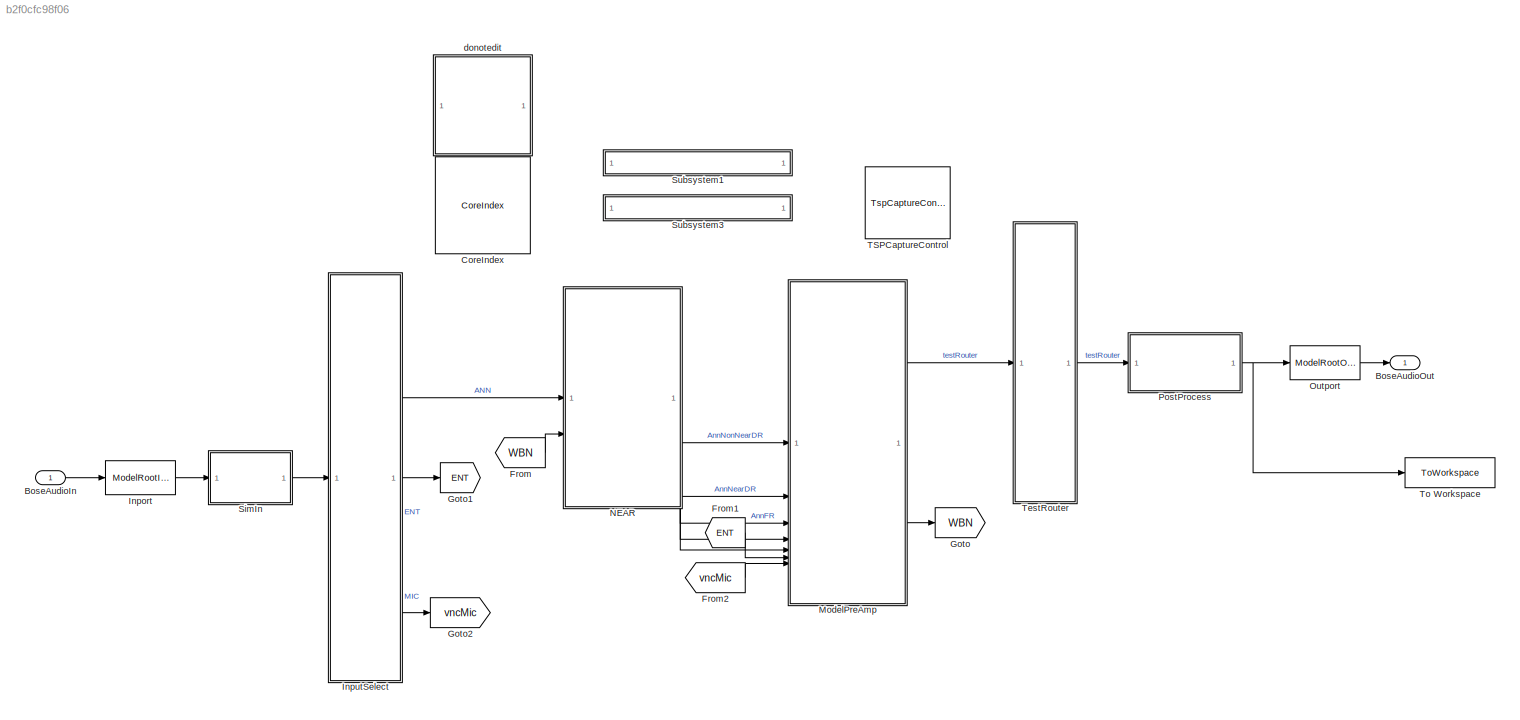
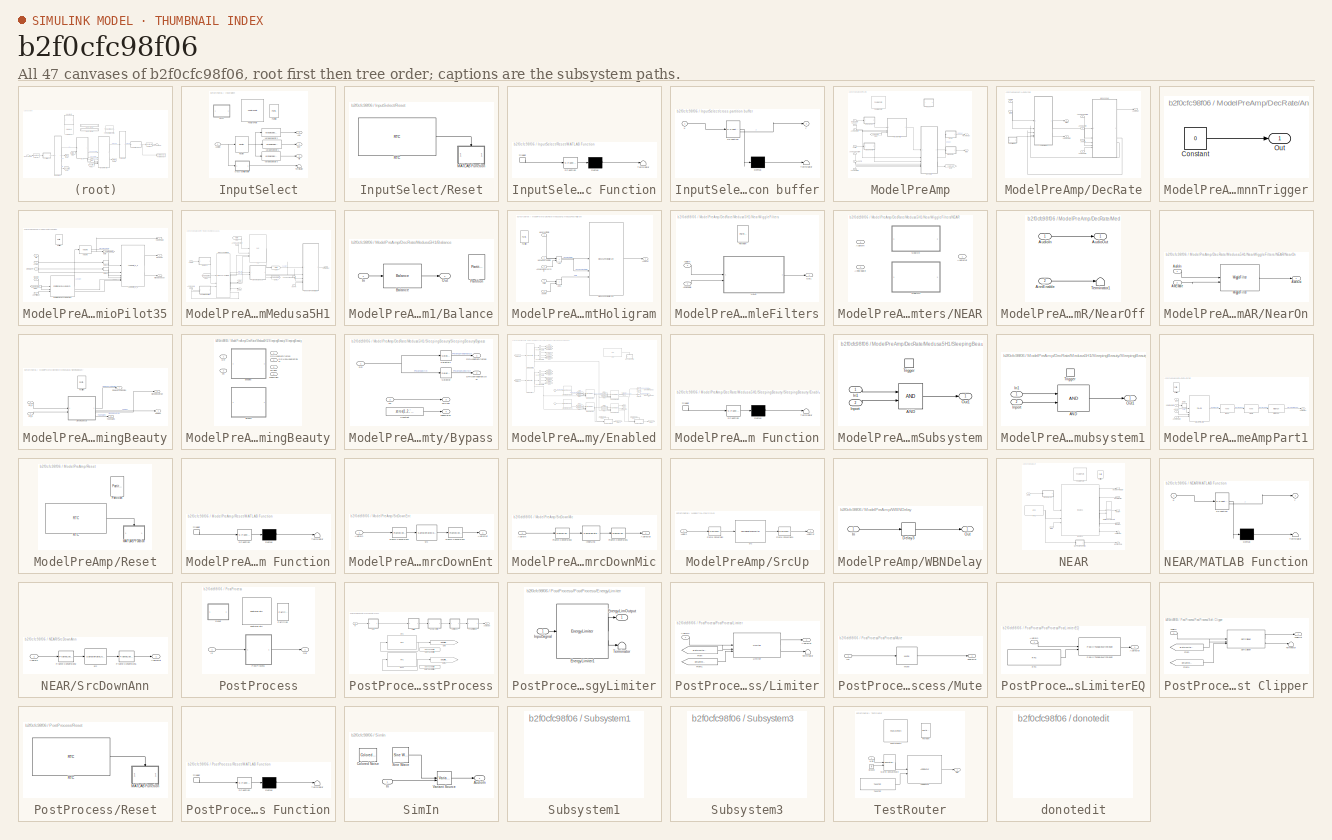
[diagram: thumbnail index - all 47 canvases of the model, root first then tree order]
MODEL slx_b2f0cfc98f06
KIND model
CONFIG AbsTol = auto
CONFIG EnableMultiTasking = off
CONFIG FixedStep = auto
CONFIG InitFcn = % Initialize model\nModelSettings=BTConfig.GetModelSettings();\n			\nModelSettings.Validate();\n\nModelInit;\n\n\n% load library data\nGainLibrary_data;
CONFIG MaxStep = auto
CONFIG MinStep = auto
CONFIG RelTol = 1e-3
CONFIG SampleTimeConstraint = Unconstrained
CONFIG SolverName = VariableStepAuto
CONFIG StartFcn = % make sure all the simulated RTC requests are found\n%RTC_SIM_OBJ.ValidateREQs();\n
CONFIG StartTime = 0.0
CONFIG StopTime = 10.0
BLOCK [Inport] BoseAudioIn
  OutDataTypeStr = single
  PortDimensions = [ModelSettings.ModelFrameSize (ModelSettings.NumInputAudioChannels + ModelSettings.NumInputMicChannels)]
  SampleTime = 1/sys_defs.Fs * sys_defs.frameSize
  VarSizeSig = No
BLOCK [Outport] BoseAudioOut
  VectorParamsAs1DForOutWhenUnconnected = off
BLOCK [Reference] CoreIndex  REF=FeaturePath/CoreIndex
  SourceBlock = FeaturePath/CoreIndex
  SourceProductName = Bose Talaria
  SourceType = Talaria Core Index
BLOCK [From] From
  GotoTag = WBN
BLOCK [From] From1
  GotoTag = ENT
BLOCK [From] From2
  GotoTag = vncMic
BLOCK [Goto] Goto
  GotoTag = WBN
BLOCK [Goto] Goto1
  GotoTag = ENT
BLOCK [Goto] Goto2
  GotoTag = vncMic
BLOCK [Reference] Inport  REF=EdgePorts/ModelRootInport
  SourceBlock = EdgePorts/ModelRootInport
  SourceProductName = Bose Talaria
  SourceType = Talaria Model Root Inport
BLOCK [SubSystem] InputSelect
  RTWSystemCode = Nonreusable function
  TreatAsAtomicUnit = on
BLOCK [Outport] InputSelect/ANN
BLOCK [Inport] InputSelect/AudioIn
BLOCK [Outport] InputSelect/ENT
  Port = 2
  VectorParamsAs1DForOutWhenUnconnected = off
BLOCK [Reference] InputSelect/FeaturePath  REF=FeaturePath/FeaturePath
  SourceBlock = FeaturePath/FeaturePath
  SourceProductName = Bose Talaria
  SourceType = Talaria Feature Path
BLOCK [Outport] InputSelect/Mic
  Port = 3
BLOCK [Reference] InputSelect/Partition  REF=FeaturePath/Partition
  SourceBlock = FeaturePath/Partition
  SourceProductName = Bose Talaria
  SourceType = Talaria Partition
BLOCK [SubSystem] InputSelect/Reset
  Commented = on
BLOCK [SubSystem] InputSelect/Reset/MATLAB Function
  ErrorFcn = Stateflow.Translate.translate
  PermitHierarchicalResolution = ExplicitOnly
  SFBlockType = MATLAB Function
  TreatAsAtomicUnit = on
BLOCK [Demux] InputSelect/Reset/MATLAB Function/ Demux 
  Outputs = 1
BLOCK [S-Function] InputSelect/Reset/MATLAB Function/ SFunction 
  EnableBusSupport = on
  FunctionName = sf_sfun
  PortCounts = [1 1]
  SFcnIsStateOwnerBlock = off
  SFunctionDeploymentMode = off
  Tag = Stateflow S-Function 4
BLOCK [Terminator] InputSelect/Reset/MATLAB Function/ Terminator 
BLOCK [TriggerPort] InputSelect/Reset/MATLAB Function/trigger
  ShowOutputPort = on
  StatesWhenEnabling = held
  TriggerType = function-call
  VariantControl = (inherit)
BLOCK [Reference] InputSelect/Reset/RTC  REF=RTC/RTC
  SourceBlock = RTC/RTC
  SourceProductName = Bose Talaria
  SourceType = Talaria RTC Receive
BLOCK [Reference] InputSelect/Router  REF=RouterBtc/Router
  SourceBlock = RouterBtc/Router
  SourceProductName = Bose Blocklib
  SourceType = Blocklib Router
BLOCK [Terminator] InputSelect/Terminator
BLOCK [Reference] InputSelect/Variable Selector1  REF=dspindex/Variable
Selector
  SourceBlock = dspindex/Variable\nSelector
  SourceType = Variable Selector
BLOCK [Reference] InputSelect/Variable Selector2  REF=dspindex/Variable
Selector
  SourceBlock = dspindex/Variable\nSelector
  SourceType = Variable Selector
BLOCK [Reference] InputSelect/Variable Selector3  REF=dspindex/Variable
Selector
  SourceBlock = dspindex/Variable\nSelector
  SourceType = Variable Selector
BLOCK [SubSystem] InputSelect/cross-partition buffer
  ErrorFcn = Stateflow.Translate.translate
  LibrarySourceBlock = simulink/User-Defined\nFunctions/MATLAB Function
  PermitHierarchicalResolution = ExplicitOnly
  SFBlockType = MATLAB Function
  TreatAsAtomicUnit = on
BLOCK [Demux] InputSelect/cross-partition buffer/ Demux 
  Outputs = 1
BLOCK [S-Function] InputSelect/cross-partition buffer/ SFunction 
  EnableBusSupport = on
  FunctionName = sf_sfun
  PortCounts = [1 2]
  SFcnIsStateOwnerBlock = off
  SFunctionDeploymentMode = off
  Tag = Stateflow S-Function 1
BLOCK [Terminator] InputSelect/cross-partition buffer/ Terminator 
BLOCK [Inport] InputSelect/cross-partition buffer/u
BLOCK [Outport] InputSelect/cross-partition buffer/y
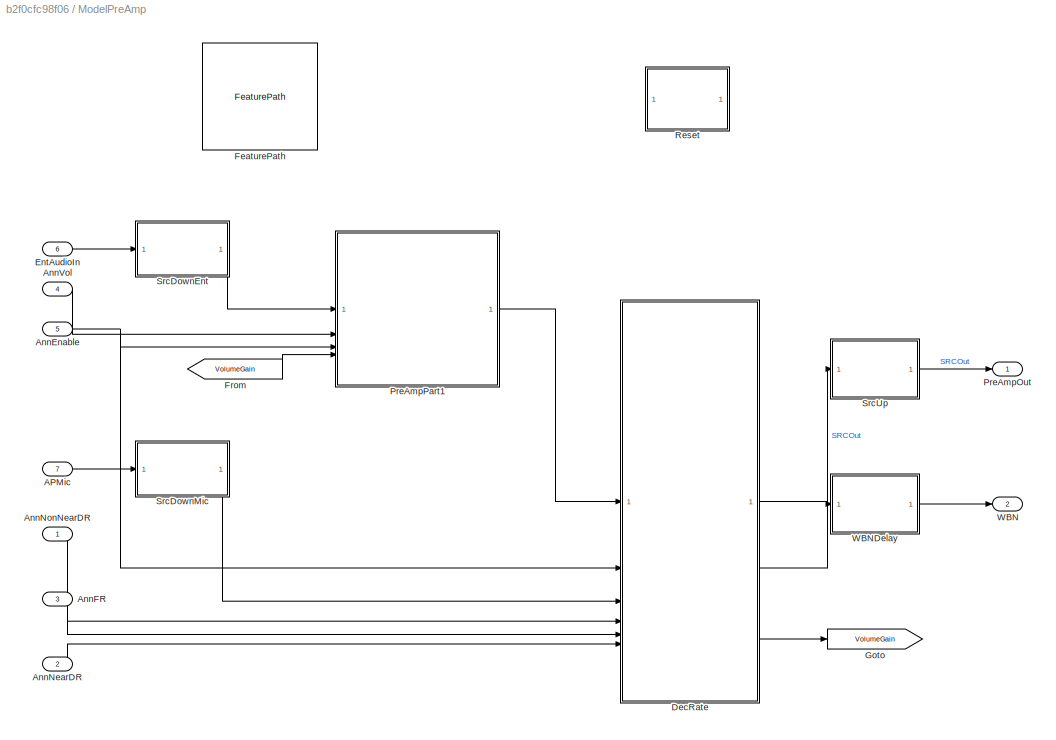
BLOCK [SubSystem] ModelPreAmp
BLOCK [Inport] ModelPreAmp/APMic
  Port = 7
BLOCK [Inport] ModelPreAmp/AnnEnable
  Port = 5
BLOCK [Inport] ModelPreAmp/AnnFR
  Port = 3
BLOCK [Inport] ModelPreAmp/AnnNearDR
  Port = 2
BLOCK [Inport] ModelPreAmp/AnnNonNearDR
BLOCK [Inport] ModelPreAmp/AnnVol
  Port = 4
BLOCK [SubSystem] ModelPreAmp/DecRate
BLOCK [Inport] ModelPreAmp/DecRate/AnnEnable
  Port = 2
BLOCK [Inport] ModelPreAmp/DecRate/AnnFR
  Port = 5
BLOCK [Inport] ModelPreAmp/DecRate/AnnNearDR
  Port = 6
BLOCK [Inport] ModelPreAmp/DecRate/AnnNonNearDR
  Port = 4
BLOCK [SubSystem] ModelPreAmp/DecRate/AnnTrigger
  TreatAsAtomicUnit = on
BLOCK [Constant] ModelPreAmp/DecRate/AnnTrigger/Constant
  SampleTime = -1
  Value = 0
BLOCK [Outport] ModelPreAmp/DecRate/AnnTrigger/Out
BLOCK [Inport] ModelPreAmp/DecRate/AudioIn
BLOCK [Outport] ModelPreAmp/DecRate/AudioOut
BLOCK [SubSystem] ModelPreAmp/DecRate/AudioPilot35
  FunctionWithSeparateData = on
  RTWFcnNameOpts = Use subsystem name
  RTWFileNameOpts = Use subsystem name
  TreatAsAtomicUnit = on
BLOCK [Inport] ModelPreAmp/DecRate/AudioPilot35/AnnTrigger
  Port = 5
BLOCK [Reference] ModelPreAmp/DecRate/AudioPilot35/Audiopilot_3_5  REF=Audiopilot_3_5/Audiopilot_3_5
  SourceBlock = Audiopilot_3_5/Audiopilot_3_5
  SourceType = AudioPilot 3.5
BLOCK [Delay] ModelPreAmp/DecRate/AudioPilot35/Delay1
  DelayLength = 32
  InputPortMap = u0
BLOCK [Delay] ModelPreAmp/DecRate/AudioPilot35/Delay2
  DelayLength = 32
  InputPortMap = u0
BLOCK [Reference] ModelPreAmp/DecRate/AudioPilot35/EntertainmentLevelDetection  REF=EntertainmentLevelDetection/EntertainmentLevelDetection
  SourceBlock = EntertainmentLevelDetection/EntertainmentLevelDetection
  SourceType = Level Detector for AudioPilot, Dyanmic EQ, Fan and Boost-on-Demand
BLOCK [From] ModelPreAmp/DecRate/AudioPilot35/From
  GotoTag = VolumeGain
BLOCK [Goto] ModelPreAmp/DecRate/AudioPilot35/Goto
  GotoTag = VolumeGain
BLOCK [Inport] ModelPreAmp/DecRate/AudioPilot35/HFRefLPF
  Port = 4
BLOCK [Inport] ModelPreAmp/DecRate/AudioPilot35/LFRef
  Port = 3
BLOCK [Inport] ModelPreAmp/DecRate/AudioPilot35/Mic
  Port = 2
BLOCK [Inport] ModelPreAmp/DecRate/AudioPilot35/MusicIn
BLOCK [Outport] ModelPreAmp/DecRate/AudioPilot35/MusicOut
BLOCK [Reference] ModelPreAmp/DecRate/AudioPilot35/Partition  REF=FeaturePath/Partition
  SourceBlock = FeaturePath/Partition
  SourceProductName = Bose Talaria
  SourceType = Talaria Partition
BLOCK [Reference] ModelPreAmp/DecRate/AudioPilot35/Volume  REF=VolumeBtc/Volume
  NameLocation = top
  SourceBlock = VolumeBtc/Volume
  SourceProductName = Bose Blocklib
  SourceType = Blocklib Volume
BLOCK [Outport] ModelPreAmp/DecRate/AudioPilot35/VolumeGain
  Port = 3
BLOCK [Outport] ModelPreAmp/DecRate/AudioPilot35/WBNoisedbspl
  Port = 2
BLOCK [SubSystem] ModelPreAmp/DecRate/Medusa5H1
BLOCK [Inport] ModelPreAmp/DecRate/Medusa5H1/AnnEnable
  Port = 5
BLOCK [Inport] ModelPreAmp/DecRate/Medusa5H1/AnnFR
  Port = 4
BLOCK [Inport] ModelPreAmp/DecRate/Medusa5H1/AnnHeadrestDR
  Port = 3
BLOCK [Inport] ModelPreAmp/DecRate/Medusa5H1/AnnNonHeadrestDR
  Port = 2
BLOCK [Inport] ModelPreAmp/DecRate/Medusa5H1/AudioIn
BLOCK [Outport] ModelPreAmp/DecRate/Medusa5H1/AudioOut
BLOCK [SubSystem] ModelPreAmp/DecRate/Medusa5H1/Balance
  TreatAsAtomicUnit = on
BLOCK [Reference] ModelPreAmp/DecRate/Medusa5H1/Balance/Balance  REF=BalanceBtc/Balance
  SourceBlock = BalanceBtc/Balance
  SourceProductName = Bose Blocklib
  SourceType = Blocklib Balance
BLOCK [Inport] ModelPreAmp/DecRate/Medusa5H1/Balance/In
BLOCK [Outport] ModelPreAmp/DecRate/Medusa5H1/Balance/Out
BLOCK [Reference] ModelPreAmp/DecRate/Medusa5H1/Balance/Partition  REF=FeaturePath/Partition
  SourceBlock = FeaturePath/Partition
  SourceProductName = Bose Talaria
  SourceType = Talaria Partition
BLOCK [From] ModelPreAmp/DecRate/Medusa5H1/From
  GotoTag = VlsIn
BLOCK [From] ModelPreAmp/DecRate/Medusa5H1/From1
  GotoTag = FadeGains
BLOCK [Goto] ModelPreAmp/DecRate/Medusa5H1/Goto
  GotoTag = VlsIn
BLOCK [Goto] ModelPreAmp/DecRate/Medusa5H1/Goto1
  GotoTag = FadeGains
BLOCK [Outport] ModelPreAmp/DecRate/Medusa5H1/HFRef
  Port = 3
BLOCK [Outport] ModelPreAmp/DecRate/Medusa5H1/LFRef
  Port = 2
BLOCK [Reference] ModelPreAmp/DecRate/Medusa5H1/MedusaHoligram  REF=medusa5h1_stereo/Medusa + Holigram  (lib defined in slx_6fa39072daa0)
  SourceBlock = medusa5h1_stereo/Medusa + Holigram
BLOCK [SubSystem] ModelPreAmp/DecRate/Medusa5H1/MedusaPostHoligram
  TreatAsAtomicUnit = on
BLOCK [Sum] ModelPreAmp/DecRate/Medusa5H1/MedusaPostHoligram/Add
  IconShape = rectangular
BLOCK [Sum] ModelPreAmp/DecRate/Medusa5H1/MedusaPostHoligram/Add1
  IconShape = rectangular
BLOCK [Inport] ModelPreAmp/DecRate/Medusa5H1/MedusaPostHoligram/AnnFR
  Port = 5
BLOCK [Inport] ModelPreAmp/DecRate/Medusa5H1/MedusaPostHoligram/AnnNonHeadresrDR
  Port = 4
BLOCK [Outport] ModelPreAmp/DecRate/Medusa5H1/MedusaPostHoligram/AudioOut
BLOCK [Inport] ModelPreAmp/DecRate/Medusa5H1/MedusaPostHoligram/FRIn
  Port = 3
BLOCK [Inport] ModelPreAmp/DecRate/Medusa5H1/MedusaPostHoligram/HeadrestDRIn
BLOCK [Reference] ModelPreAmp/DecRate/Medusa5H1/MedusaPostHoligram/MedusaPostHoligram  REF=medusa5h1_stereo/MedusaPostHoligram  (lib defined in slx_6fa39072daa0)
  SourceBlock = medusa5h1_stereo/MedusaPostHoligram
BLOCK [Inport] ModelPreAmp/DecRate/Medusa5H1/MedusaPostHoligram/NonHeadrestDRIn
  Port = 2
BLOCK [Reference] ModelPreAmp/DecRate/Medusa5H1/MedusaPostHoligram/Partition  REF=FeaturePath/Partition
  SourceBlock = FeaturePath/Partition
  SourceProductName = Bose Talaria
  SourceType = Talaria Partition
BLOCK [SubSystem] ModelPreAmp/DecRate/Medusa5H1/NearWiggleFilters
  TreatAsAtomicUnit = on
BLOCK [Inport] ModelPreAmp/DecRate/Medusa5H1/NearWiggleFilters/AnnEnable
BLOCK [Inport] ModelPreAmp/DecRate/Medusa5H1/NearWiggleFilters/AudioIn
  Port = 2
BLOCK [SubSystem] ModelPreAmp/DecRate/Medusa5H1/NearWiggleFilters/NEAR
  Variant = on
  VariantControl = Variant1
BLOCK [Inport] ModelPreAmp/DecRate/Medusa5H1/NearWiggleFilters/NEAR/AnnEnable
  Port = 2
BLOCK [Inport] ModelPreAmp/DecRate/Medusa5H1/NearWiggleFilters/NEAR/AudioIn
BLOCK [Outport] ModelPreAmp/DecRate/Medusa5H1/NearWiggleFilters/NEAR/AudioOut
BLOCK [SubSystem] ModelPreAmp/DecRate/Medusa5H1/NearWiggleFilters/NEAR/NearOff
  VariantControl = 0 == Config.NearEnable
BLOCK [Inport] ModelPreAmp/DecRate/Medusa5H1/NearWiggleFilters/NEAR/NearOff/AnnEnable
  Port = 2
BLOCK [Inport] ModelPreAmp/DecRate/Medusa5H1/NearWiggleFilters/NEAR/NearOff/AudioIn
BLOCK [Outport] ModelPreAmp/DecRate/Medusa5H1/NearWiggleFilters/NEAR/NearOff/AudioOut
BLOCK [Terminator] ModelPreAmp/DecRate/Medusa5H1/NearWiggleFilters/NEAR/NearOff/Terminator1
BLOCK [SubSystem] ModelPreAmp/DecRate/Medusa5H1/NearWiggleFilters/NEAR/NearOn
  VariantControl = 0 ~= Config.NearEnable
BLOCK [Inport] ModelPreAmp/DecRate/Medusa5H1/NearWiggleFilters/NEAR/NearOn/AnnEnable
  Port = 2
BLOCK [Inport] ModelPreAmp/DecRate/Medusa5H1/NearWiggleFilters/NEAR/NearOn/AudioIn
BLOCK [Outport] ModelPreAmp/DecRate/Medusa5H1/NearWiggleFilters/NEAR/NearOn/AudioOut
BLOCK [Reference] ModelPreAmp/DecRate/Medusa5H1/NearWiggleFilters/NEAR/NearOn/WiggleFilter  REF=WiggleFilterLib/WiggleFilter
  SourceBlock = WiggleFilterLib/WiggleFilter
BLOCK [Outport] ModelPreAmp/DecRate/Medusa5H1/NearWiggleFilters/Out1
BLOCK [Reference] ModelPreAmp/DecRate/Medusa5H1/NearWiggleFilters/Partition  REF=FeaturePath/Partition
  SourceBlock = FeaturePath/Partition
  SourceProductName = Bose Talaria
  SourceType = Talaria Partition
BLOCK [SubSystem] ModelPreAmp/DecRate/Medusa5H1/SleepingBeauty
  TreatAsAtomicUnit = on
BLOCK [Outport] ModelPreAmp/DecRate/Medusa5H1/SleepingBeauty/DRHeadrestComps
BLOCK [Inport] ModelPreAmp/DecRate/Medusa5H1/SleepingBeauty/DR_In
BLOCK [Outport] ModelPreAmp/DecRate/Medusa5H1/SleepingBeauty/FRSpkr
  Port = 3
BLOCK [Inport] ModelPreAmp/DecRate/Medusa5H1/SleepingBeauty/FR_In
  Port = 2
BLOCK [Outport] ModelPreAmp/DecRate/Medusa5H1/SleepingBeauty/FadeGains
  Port = 4
BLOCK [Reference] ModelPreAmp/DecRate/Medusa5H1/SleepingBeauty/Partition  REF=FeaturePath/Partition
  SourceBlock = FeaturePath/Partition
  SourceProductName = Bose Talaria
  SourceType = Talaria Partition
BLOCK [Outport] ModelPreAmp/DecRate/Medusa5H1/SleepingBeauty/SleepBeautyOut
  Port = 2
BLOCK [SubSystem] ModelPreAmp/DecRate/Medusa5H1/SleepingBeauty/SleepingBeauty
  Variant = on
  VariantControl = Choice
BLOCK [SubSystem] ModelPreAmp/DecRate/Medusa5H1/SleepingBeauty/SleepingBeauty/Bypass
  RTWFcnNameOpts = Use subsystem name
  RTWFileNameOpts = Use subsystem name
  RTWSystemCode = Nonreusable function
  TreatAsAtomicUnit = on
  VariantControl = Config.SleepingBeautyEnabled == 0
BLOCK [Constant] ModelPreAmp/DecRate/Medusa5H1/SleepingBeauty/SleepingBeauty/Bypass/Constant
  Value = zeros(1,2,'single')
BLOCK [Inport] ModelPreAmp/DecRate/Medusa5H1/SleepingBeauty/SleepingBeauty/Bypass/DR
BLOCK [Outport] ModelPreAmp/DecRate/Medusa5H1/SleepingBeauty/SleepingBeauty/Bypass/DRHeadrestComps
BLOCK [Outport] ModelPreAmp/DecRate/Medusa5H1/SleepingBeauty/SleepingBeauty/Bypass/DRNonHeadrestSpkr
  Port = 2
BLOCK [Inport] ModelPreAmp/DecRate/Medusa5H1/SleepingBeauty/SleepingBeauty/Bypass/FR
  Port = 2
BLOCK [Outport] ModelPreAmp/DecRate/Medusa5H1/SleepingBeauty/SleepingBeauty/Bypass/FRSpkr
  Port = 3
BLOCK [Outport] ModelPreAmp/DecRate/Medusa5H1/SleepingBeauty/SleepingBeauty/Bypass/FadeGains
  Port = 4
BLOCK [Selector] ModelPreAmp/DecRate/Medusa5H1/SleepingBeauty/SleepingBeauty/Bypass/Selector
  IndexOptions = Select all,Index vector (dialog)
  Indices = [1 3],1:MedusaConfig.numNonHeadrest
  InputPortWidth = 3
  NumberOfDimensions = 2
  OutputSizes = 1,1
BLOCK [Selector] ModelPreAmp/DecRate/Medusa5H1/SleepingBeauty/SleepingBeauty/Bypass/Selector1
  IndexOptions = Select all,Index vector (dialog)
  Indices = [1 3],MedusaConfig.numNonHeadrest+1:MedusaConfig.numDRChan
  InputPortWidth = 3
  NumberOfDimensions = 2
  OutputSizes = 1,1
BLOCK [Inport] ModelPreAmp/DecRate/Medusa5H1/SleepingBeauty/SleepingBeauty/DR
BLOCK [Outport] ModelPreAmp/DecRate/Medusa5H1/SleepingBeauty/SleepingBeauty/DRHeadrestComps
BLOCK [Outport] ModelPreAmp/DecRate/Medusa5H1/SleepingBeauty/SleepingBeauty/DRNonHeadrestSpkr
  Port = 2
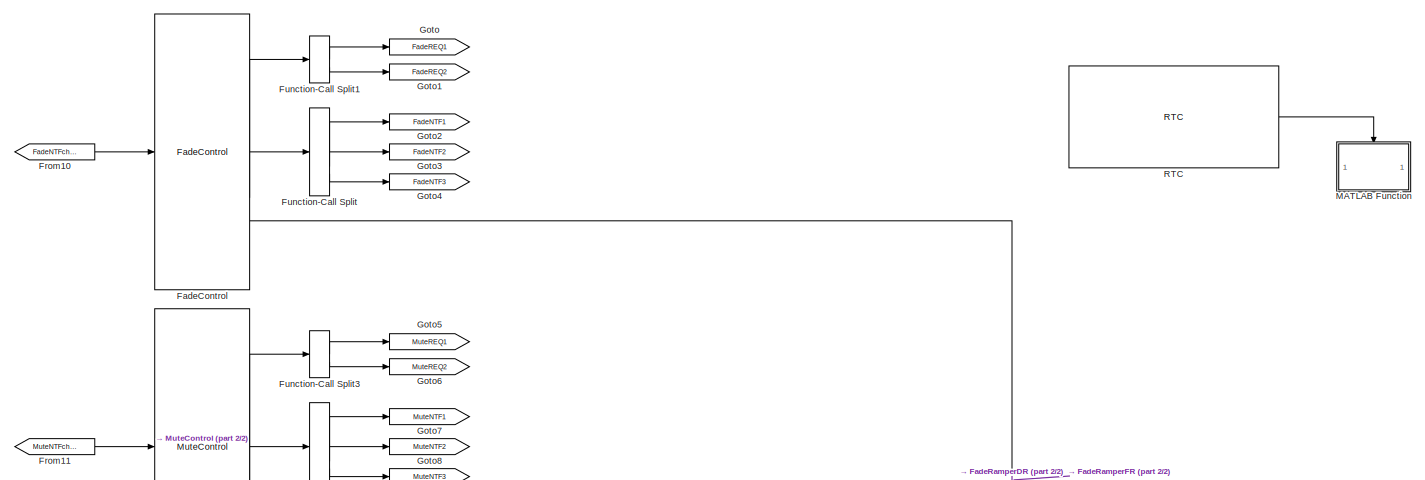
[diagram: ModelPreAmp/DecRate/Medusa5H1/SleepingBeauty/SleepingBeauty/Enabled - part 1/2, full width, top band]
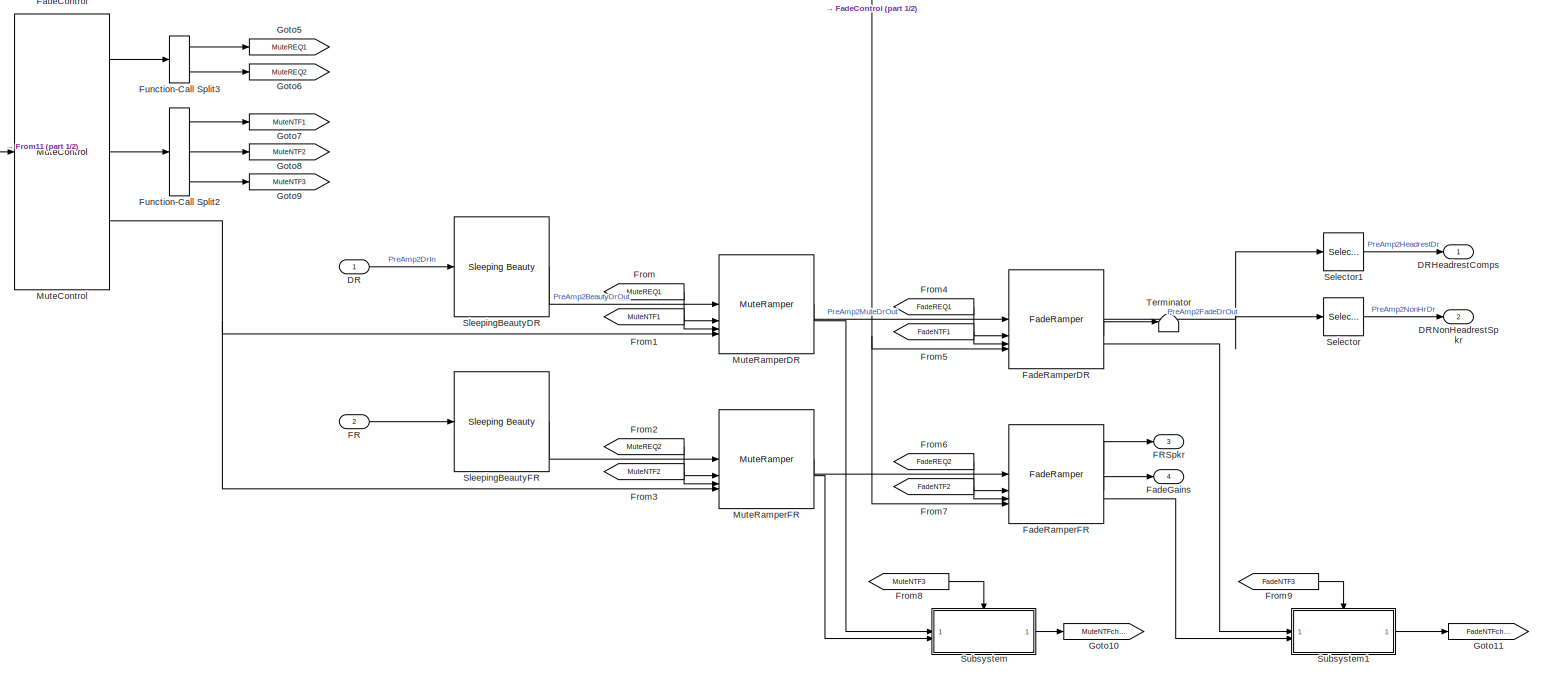
[diagram: ModelPreAmp/DecRate/Medusa5H1/SleepingBeauty/SleepingBeauty/Enabled - part 2/2, full width, middle band]
BLOCK [SubSystem] ModelPreAmp/DecRate/Medusa5H1/SleepingBeauty/SleepingBeauty/Enabled
  RTWFcnNameOpts = Use subsystem name
  RTWFileNameOpts = Use subsystem name
  RTWSystemCode = Nonreusable function
  TreatAsAtomicUnit = on
  VariantControl = (default)
BLOCK [Inport] ModelPreAmp/DecRate/Medusa5H1/SleepingBeauty/SleepingBeauty/Enabled/DR
BLOCK [Outport] ModelPreAmp/DecRate/Medusa5H1/SleepingBeauty/SleepingBeauty/Enabled/DRHeadrestComps
BLOCK [Outport] ModelPreAmp/DecRate/Medusa5H1/SleepingBeauty/SleepingBeauty/Enabled/DRNonHeadrestSpkr
  Port = 2
BLOCK [Inport] ModelPreAmp/DecRate/Medusa5H1/SleepingBeauty/SleepingBeauty/Enabled/FR
  Port = 2
BLOCK [Outport] ModelPreAmp/DecRate/Medusa5H1/SleepingBeauty/SleepingBeauty/Enabled/FRSpkr
  Port = 3
BLOCK [Reference] ModelPreAmp/DecRate/Medusa5H1/SleepingBeauty/SleepingBeauty/Enabled/FadeControl  REF=FadeControl/FadeControl
  SourceBlock = FadeControl/FadeControl
  SourceType = Bose FadeControl
BLOCK [Outport] ModelPreAmp/DecRate/Medusa5H1/SleepingBeauty/SleepingBeauty/Enabled/FadeGains
  Port = 4
BLOCK [Reference] ModelPreAmp/DecRate/Medusa5H1/SleepingBeauty/SleepingBeauty/Enabled/FadeRamperDR  REF=FadeRamper/FadeRamper
  SourceBlock = FadeRamper/FadeRamper
  SourceType = Bose FadeRamper
BLOCK [Reference] ModelPreAmp/DecRate/Medusa5H1/SleepingBeauty/SleepingBeauty/Enabled/FadeRamperFR  REF=FadeRamper/FadeRamper
  SourceBlock = FadeRamper/FadeRamper
  SourceType = Bose FadeRamper
BLOCK [From] ModelPreAmp/DecRate/Medusa5H1/SleepingBeauty/SleepingBeauty/Enabled/From
  GotoTag = MuteREQ1
BLOCK [From] ModelPreAmp/DecRate/Medusa5H1/SleepingBeauty/SleepingBeauty/Enabled/From1
  GotoTag = MuteNTF1
BLOCK [From] ModelPreAmp/DecRate/Medusa5H1/SleepingBeauty/SleepingBeauty/Enabled/From10
  GotoTag = FadeNTFcheck
BLOCK [From] ModelPreAmp/DecRate/Medusa5H1/SleepingBeauty/SleepingBeauty/Enabled/From11
  GotoTag = MuteNTFcheck
BLOCK [From] ModelPreAmp/DecRate/Medusa5H1/SleepingBeauty/SleepingBeauty/Enabled/From2
  GotoTag = MuteREQ2
BLOCK [From] ModelPreAmp/DecRate/Medusa5H1/SleepingBeauty/SleepingBeauty/Enabled/From3
  GotoTag = MuteNTF2
BLOCK [From] ModelPreAmp/DecRate/Medusa5H1/SleepingBeauty/SleepingBeauty/Enabled/From4
  GotoTag = FadeREQ1
BLOCK [From] ModelPreAmp/DecRate/Medusa5H1/SleepingBeauty/SleepingBeauty/Enabled/From5
  GotoTag = FadeNTF1
BLOCK [From] ModelPreAmp/DecRate/Medusa5H1/SleepingBeauty/SleepingBeauty/Enabled/From6
  GotoTag = FadeREQ2
BLOCK [From] ModelPreAmp/DecRate/Medusa5H1/SleepingBeauty/SleepingBeauty/Enabled/From7
  GotoTag = FadeNTF2
BLOCK [From] ModelPreAmp/DecRate/Medusa5H1/SleepingBeauty/SleepingBeauty/Enabled/From8
  GotoTag = MuteNTF3
BLOCK [From] ModelPreAmp/DecRate/Medusa5H1/SleepingBeauty/SleepingBeauty/Enabled/From9
  GotoTag = FadeNTF3
BLOCK [FunctionCallSplit] ModelPreAmp/DecRate/Medusa5H1/SleepingBeauty/SleepingBeauty/Enabled/Function-Call Split
  IconShape = distinctive
  NumOutputPorts = 3
  OutputPortLayout = default
BLOCK [FunctionCallSplit] ModelPreAmp/DecRate/Medusa5H1/SleepingBeauty/SleepingBeauty/Enabled/Function-Call Split1
  IconShape = distinctive
  NumOutputPorts = 2
  OutputPortLayout = default
BLOCK [FunctionCallSplit] ModelPreAmp/DecRate/Medusa5H1/SleepingBeauty/SleepingBeauty/Enabled/Function-Call Split2
  IconShape = distinctive
  NumOutputPorts = 3
  OutputPortLayout = default
BLOCK [FunctionCallSplit] ModelPreAmp/DecRate/Medusa5H1/SleepingBeauty/SleepingBeauty/Enabled/Function-Call Split3
  IconShape = distinctive
  NumOutputPorts = 2
  OutputPortLayout = default
BLOCK [Goto] ModelPreAmp/DecRate/Medusa5H1/SleepingBeauty/SleepingBeauty/Enabled/Goto
  GotoTag = FadeREQ1
BLOCK [Goto] ModelPreAmp/DecRate/Medusa5H1/SleepingBeauty/SleepingBeauty/Enabled/Goto1
  GotoTag = FadeREQ2
BLOCK [Goto] ModelPreAmp/DecRate/Medusa5H1/SleepingBeauty/SleepingBeauty/Enabled/Goto10
  GotoTag = MuteNTFcheck
BLOCK [Goto] ModelPreAmp/DecRate/Medusa5H1/SleepingBeauty/SleepingBeauty/Enabled/Goto11
  GotoTag = FadeNTFcheck
BLOCK [Goto] ModelPreAmp/DecRate/Medusa5H1/SleepingBeauty/SleepingBeauty/Enabled/Goto2
  GotoTag = FadeNTF1
BLOCK [Goto] ModelPreAmp/DecRate/Medusa5H1/SleepingBeauty/SleepingBeauty/Enabled/Goto3
  GotoTag = FadeNTF2
BLOCK [Goto] ModelPreAmp/DecRate/Medusa5H1/SleepingBeauty/SleepingBeauty/Enabled/Goto4
  GotoTag = FadeNTF3
BLOCK [Goto] ModelPreAmp/DecRate/Medusa5H1/SleepingBeauty/SleepingBeauty/Enabled/Goto5
  GotoTag = MuteREQ1
BLOCK [Goto] ModelPreAmp/DecRate/Medusa5H1/SleepingBeauty/SleepingBeauty/Enabled/Goto6
  GotoTag = MuteREQ2
BLOCK [Goto] ModelPreAmp/DecRate/Medusa5H1/SleepingBeauty/SleepingBeauty/Enabled/Goto7
  GotoTag = MuteNTF1
BLOCK [Goto] ModelPreAmp/DecRate/Medusa5H1/SleepingBeauty/SleepingBeauty/Enabled/Goto8
  GotoTag = MuteNTF2
BLOCK [Goto] ModelPreAmp/DecRate/Medusa5H1/SleepingBeauty/SleepingBeauty/Enabled/Goto9
  GotoTag = MuteNTF3
BLOCK [SubSystem] ModelPreAmp/DecRate/Medusa5H1/SleepingBeauty/SleepingBeauty/Enabled/MATLAB Function
  ErrorFcn = Stateflow.Translate.translate
  PermitHierarchicalResolution = ExplicitOnly
  SFBlockType = MATLAB Function
  TreatAsAtomicUnit = on
BLOCK [Demux] ModelPreAmp/DecRate/Medusa5H1/SleepingBeauty/SleepingBeauty/Enabled/MATLAB Function/ Demux 
  Outputs = 1
BLOCK [S-Function] ModelPreAmp/DecRate/Medusa5H1/SleepingBeauty/SleepingBeauty/Enabled/MATLAB Function/ SFunction 
  EnableBusSupport = on
  FunctionName = sf_sfun
  PortCounts = [1 1]
  SFcnIsStateOwnerBlock = off
  SFunctionDeploymentMode = off
  Tag = Stateflow S-Function 7
BLOCK [Terminator] ModelPreAmp/DecRate/Medusa5H1/SleepingBeauty/SleepingBeauty/Enabled/MATLAB Function/ Terminator 
BLOCK [TriggerPort] ModelPreAmp/DecRate/Medusa5H1/SleepingBeauty/SleepingBeauty/Enabled/MATLAB Function/trigger
  ShowOutputPort = on
  StatesWhenEnabling = held
  TriggerType = function-call
  VariantControl = (inherit)
BLOCK [Reference] ModelPreAmp/DecRate/Medusa5H1/SleepingBeauty/SleepingBeauty/Enabled/MuteControl  REF=MuteControl/MuteControl
  SourceBlock = MuteControl/MuteControl
  SourceType = Bose MuteControl
BLOCK [Reference] ModelPreAmp/DecRate/Medusa5H1/SleepingBeauty/SleepingBeauty/Enabled/MuteRamperDR  REF=MuteRamper/MuteRamper
  SourceBlock = MuteRamper/MuteRamper
  SourceType = Bose MuteRamper
BLOCK [Reference] ModelPreAmp/DecRate/Medusa5H1/SleepingBeauty/SleepingBeauty/Enabled/MuteRamperFR  REF=MuteRamper/MuteRamper
  SourceBlock = MuteRamper/MuteRamper
  SourceType = Bose MuteRamper
BLOCK [Reference] ModelPreAmp/DecRate/Medusa5H1/SleepingBeauty/SleepingBeauty/Enabled/RTC  REF=RTC/RTC
  SourceBlock = RTC/RTC
  SourceProductName = Bose Talaria
  SourceType = Talaria RTC Receive
BLOCK [Selector] ModelPreAmp/DecRate/Medusa5H1/SleepingBeauty/SleepingBeauty/Enabled/Selector
  IndexOptions = Select all,Index vector (dialog)
  Indices = [1 3],1:MedusaConfig.numNonHeadrest
  InputPortWidth = 3
  NumberOfDimensions = 2
  OutputSizes = 1,1
BLOCK [Selector] ModelPreAmp/DecRate/Medusa5H1/SleepingBeauty/SleepingBeauty/Enabled/Selector1
  IndexOptions = Select all,Index vector (dialog)
  Indices = [1 3],MedusaConfig.numNonHeadrest+1:MedusaConfig.numDRChan
  InputPortWidth = 3
  NumberOfDimensions = 2
  OutputSizes = 1,1
BLOCK [Reference] ModelPreAmp/DecRate/Medusa5H1/SleepingBeauty/SleepingBeauty/Enabled/SleepingBeautyDR  REF=SleepingBeauty/Sleeping Beauty
  SourceBlock = SleepingBeauty/Sleeping Beauty
  SourceType = Bose SleepingBeauty
BLOCK [Reference] ModelPreAmp/DecRate/Medusa5H1/SleepingBeauty/SleepingBeauty/Enabled/SleepingBeautyFR  REF=SleepingBeauty/Sleeping Beauty
  SourceBlock = SleepingBeauty/Sleeping Beauty
  SourceType = Bose SleepingBeauty
BLOCK [SubSystem] ModelPreAmp/DecRate/Medusa5H1/SleepingBeauty/SleepingBeauty/Enabled/Subsystem
BLOCK [Logic] ModelPreAmp/DecRate/Medusa5H1/SleepingBeauty/SleepingBeauty/Enabled/Subsystem/AND
  AllPortsSameDT = off
  IconShape = distinctive
  OutDataTypeStr = boolean
BLOCK [Inport] ModelPreAmp/DecRate/Medusa5H1/SleepingBeauty/SleepingBeauty/Enabled/Subsystem/In1
BLOCK [Inport] ModelPreAmp/DecRate/Medusa5H1/SleepingBeauty/SleepingBeauty/Enabled/Subsystem/Inport
  Port = 2
BLOCK [Outport] ModelPreAmp/DecRate/Medusa5H1/SleepingBeauty/SleepingBeauty/Enabled/Subsystem/Out1
BLOCK [TriggerPort] ModelPreAmp/DecRate/Medusa5H1/SleepingBeauty/SleepingBeauty/Enabled/Subsystem/Trigger
  PortDimensions = 1
  StatesWhenEnabling = held
  TriggerType = function-call
  VariantControl = Variant
BLOCK [SubSystem] ModelPreAmp/DecRate/Medusa5H1/SleepingBeauty/SleepingBeauty/Enabled/Subsystem1
BLOCK [Logic] ModelPreAmp/DecRate/Medusa5H1/SleepingBeauty/SleepingBeauty/Enabled/Subsystem1/AND
  AllPortsSameDT = off
  IconShape = distinctive
  OutDataTypeStr = boolean
BLOCK [Inport] ModelPreAmp/DecRate/Medusa5H1/SleepingBeauty/SleepingBeauty/Enabled/Subsystem1/In1
BLOCK [Inport] ModelPreAmp/DecRate/Medusa5H1/SleepingBeauty/SleepingBeauty/Enabled/Subsystem1/Inport
  Port = 2
BLOCK [Outport] ModelPreAmp/DecRate/Medusa5H1/SleepingBeauty/SleepingBeauty/Enabled/Subsystem1/Out1
BLOCK [TriggerPort] ModelPreAmp/DecRate/Medusa5H1/SleepingBeauty/SleepingBeauty/Enabled/Subsystem1/Trigger
  PortDimensions = 1
  StatesWhenEnabling = held
  TriggerType = function-call
  VariantControl = Variant
BLOCK [Terminator] ModelPreAmp/DecRate/Medusa5H1/SleepingBeauty/SleepingBeauty/Enabled/Terminator
BLOCK [Inport] ModelPreAmp/DecRate/Medusa5H1/SleepingBeauty/SleepingBeauty/FR
  Port = 2
BLOCK [Outport] ModelPreAmp/DecRate/Medusa5H1/SleepingBeauty/SleepingBeauty/FRSpkr
  Port = 3
BLOCK [Outport] ModelPreAmp/DecRate/Medusa5H1/SleepingBeauty/SleepingBeauty/FadeGains
  Port = 4
BLOCK [Reference] ModelPreAmp/DecRate/Medusa5H1/VLS  REF=VLS/VLS
  SourceBlock = VLS/VLS
  SourceType = Virtual Loudspeaker
BLOCK [Inport] ModelPreAmp/DecRate/MicIn
  Port = 3
BLOCK [Outport] ModelPreAmp/DecRate/VolumeGain
  Port = 3
BLOCK [Outport] ModelPreAmp/DecRate/WBN
  Port = 2
BLOCK [Inport] ModelPreAmp/EntAudioIn
  Port = 6
BLOCK [Reference] ModelPreAmp/FeaturePath  REF=FeaturePath/FeaturePath
  SourceBlock = FeaturePath/FeaturePath
  SourceProductName = Bose Talaria
  SourceType = Talaria Feature Path
BLOCK [From] ModelPreAmp/From
  GotoTag = VolumeGain
BLOCK [Goto] ModelPreAmp/Goto
  GotoTag = VolumeGain
BLOCK [Outport] ModelPreAmp/PreAmpOut
  VectorParamsAs1DForOutWhenUnconnected = off
BLOCK [SubSystem] ModelPreAmp/PreAmpPart1
  FunctionWithSeparateData = on
  RTWSystemCode = Nonreusable function
  TreatAsAtomicUnit = on
BLOCK [Inport] ModelPreAmp/PreAmpPart1/AnnEnable
  Port = 3
BLOCK [Inport] ModelPreAmp/PreAmpPart1/AnnVol
  Port = 2
BLOCK [Outport] ModelPreAmp/PreAmpPart1/AudioOut
BLOCK [Reference] ModelPreAmp/PreAmpPart1/Bass  REF=ToneBtc/Tone
  SourceBlock = ToneBtc/Tone
  SourceProductName = Bose Blocklib
  SourceType = Blocklib Tone
BLOCK [Delay] ModelPreAmp/PreAmpPart1/Delay
  DelayLength = 1
  InputPortMap = u0
BLOCK [Inport] ModelPreAmp/PreAmpPart1/Ent
BLOCK [Reference] ModelPreAmp/PreAmpPart1/Midrange  REF=MidrangeBtc/Midrange
  SourceBlock = MidrangeBtc/Midrange
  SourceProductName = Bose Blocklib
  SourceType = Blocklib Midrange
BLOCK [Reference] ModelPreAmp/PreAmpPart1/NEARPreAmp  REF=PreAmpLib/PreAmp
  SourceBlock = PreAmpLib/PreAmp
  SourceType = PreAmp
BLOCK [Reference] ModelPreAmp/PreAmpPart1/Partition  REF=FeaturePath/Partition
  SourceBlock = FeaturePath/Partition
  SourceProductName = Bose Talaria
  SourceType = Talaria Partition
BLOCK [Reference] ModelPreAmp/PreAmpPart1/Treble  REF=ToneBtc/Tone
  SourceBlock = ToneBtc/Tone
  SourceProductName = Bose Blocklib
  SourceType = Blocklib Tone
BLOCK [Inport] ModelPreAmp/PreAmpPart1/VolumeGain
  Port = 4
BLOCK [SubSystem] ModelPreAmp/Reset
  Commented = on
  TreatAsAtomicUnit = on
BLOCK [SubSystem] ModelPreAmp/Reset/MATLAB Function
  ErrorFcn = Stateflow.Translate.translate
  PermitHierarchicalResolution = ExplicitOnly
  SFBlockType = MATLAB Function
  TreatAsAtomicUnit = on
BLOCK [Demux] ModelPreAmp/Reset/MATLAB Function/ Demux 
  Outputs = 1
BLOCK [S-Function] ModelPreAmp/Reset/MATLAB Function/ SFunction 
  EnableBusSupport = on
  FunctionName = sf_sfun
  PortCounts = [1 1]
  SFcnIsStateOwnerBlock = off
  SFunctionDeploymentMode = off
  Tag = Stateflow S-Function 3
BLOCK [Terminator] ModelPreAmp/Reset/MATLAB Function/ Terminator 
BLOCK [TriggerPort] ModelPreAmp/Reset/MATLAB Function/trigger
  ShowOutputPort = on
  StatesWhenEnabling = held
  TriggerType = function-call
  VariantControl = (inherit)
BLOCK [Reference] ModelPreAmp/Reset/Partition  REF=FeaturePath/Partition
  SourceBlock = FeaturePath/Partition
  SourceProductName = Bose Talaria
  SourceType = Talaria Partition
BLOCK [Reference] ModelPreAmp/Reset/RTC  REF=RTC/RTC
  SourceBlock = RTC/RTC
  SourceProductName = Bose Talaria
  SourceType = Talaria RTC Receive
BLOCK [SubSystem] ModelPreAmp/SrcDownEnt
  RTWSystemCode = Nonreusable function
  TreatAsAtomicUnit = on
BLOCK [Inport] ModelPreAmp/SrcDownEnt/AudioIn
BLOCK [Outport] ModelPreAmp/SrcDownEnt/AudioOut
BLOCK [FrameConversion] ModelPreAmp/SrcDownEnt/Frame Conversion1
  OutFrame = Sample-based
BLOCK [FrameConversion] ModelPreAmp/SrcDownEnt/Frame Conversion2
BLOCK [Reference] ModelPreAmp/SrcDownEnt/src  REF=SampleRateConverterBtc/SampleRateConverter
  SourceBlock = SampleRateConverterBtc/SampleRateConverter
  SourceProductName = Bose Blocklib
  SourceType = Blocklib SampleRateConverter
BLOCK [SubSystem] ModelPreAmp/SrcDownMic
  RTWSystemCode = Nonreusable function
  TreatAsAtomicUnit = on
BLOCK [Inport] ModelPreAmp/SrcDownMic/AudioIn
BLOCK [Outport] ModelPreAmp/SrcDownMic/AudioOut
BLOCK [FrameConversion] ModelPreAmp/SrcDownMic/Frame Conversion1
  OutFrame = Sample-based
BLOCK [FrameConversion] ModelPreAmp/SrcDownMic/Frame Conversion2
BLOCK [Reference] ModelPreAmp/SrcDownMic/InnerLink  REF=SampleRateConverterBtc/SampleRateConverter
  SourceBlock = SampleRateConverterBtc/SampleRateConverter
  SourceProductName = Bose Blocklib
  SourceType = Blocklib SampleRateConverter
BLOCK [SubSystem] ModelPreAmp/SrcUp
  RTWSystemCode = Nonreusable function
  TreatAsAtomicUnit = on
BLOCK [Inport] ModelPreAmp/SrcUp/AudioIn
BLOCK [Outport] ModelPreAmp/SrcUp/AudioOut
BLOCK [FrameConversion] ModelPreAmp/SrcUp/Frame Conversion
BLOCK [FrameConversion] ModelPreAmp/SrcUp/Frame Conversion1
  OutFrame = Sample-based
BLOCK [Reference] ModelPreAmp/SrcUp/src  REF=SampleRateConverterBtc/SampleRateConverter
  SourceBlock = SampleRateConverterBtc/SampleRateConverter
  SourceProductName = Bose Blocklib
  SourceType = Blocklib SampleRateConverter
BLOCK [Outport] ModelPreAmp/WBN
  Port = 2
BLOCK [SubSystem] ModelPreAmp/WBNDelay
BLOCK [Delay] ModelPreAmp/WBNDelay/Delay3
  DelayLength = 1
  InputPortMap = u0
BLOCK [Inport] ModelPreAmp/WBNDelay/In
BLOCK [Outport] ModelPreAmp/WBNDelay/Out
BLOCK [SubSystem] NEAR
  TreatAsAtomicUnit = on
BLOCK [Inport] NEAR/AnnIn
BLOCK [Reference] NEAR/FeaturePath  REF=FeaturePath/FeaturePath
  SourceBlock = FeaturePath/FeaturePath
  SourceProductName = Bose Talaria
  SourceType = Talaria Feature Path
BLOCK [SubSystem] NEAR/MATLAB Function
  ErrorFcn = Stateflow.Translate.translate
  LibrarySourceBlock = simulink/User-Defined\nFunctions/MATLAB Function
  PermitHierarchicalResolution = ExplicitOnly
  SFBlockType = MATLAB Function
  TreatAsAtomicUnit = on
BLOCK [Demux] NEAR/MATLAB Function/ Demux 
  Outputs = 1
BLOCK [S-Function] NEAR/MATLAB Function/ SFunction 
  EnableBusSupport = on
  FunctionName = sf_sfun
  PortCounts = [1 2]
  SFcnIsStateOwnerBlock = off
  SFunctionDeploymentMode = off
  Tag = Stateflow S-Function 2
BLOCK [Terminator] NEAR/MATLAB Function/ Terminator 
BLOCK [Inport] NEAR/MATLAB Function/u
BLOCK [Outport] NEAR/MATLAB Function/y
BLOCK [Concatenate] NEAR/Matrix Concatenate
  ConcatenateDimension = 2
  Mode = Multidimensional array
BLOCK [Reference] NEAR/Near1p1  REF=Near1p1Ann/Near1p1
  SourceBlock = Near1p1Ann/Near1p1
BLOCK [Outport] NEAR/NearEnable
  Port = 5
BLOCK [Outport] NEAR/NearFr
  Port = 3
BLOCK [Outport] NEAR/NearHrOutDr
  Port = 2
BLOCK [Outport] NEAR/NearNonHrOutDr
BLOCK [Outport] NEAR/NearVol
  Port = 4
BLOCK [Reference] NEAR/Partition  REF=FeaturePath/Partition
  SourceBlock = FeaturePath/Partition
  SourceProductName = Bose Talaria
  SourceType = Talaria Partition
BLOCK [Reference] NEAR/RTC  REF=RTC/RTC
  SourceBlock = RTC/RTC
  SourceProductName = Bose Talaria
  SourceType = Talaria RTC Receive
BLOCK [SubSystem] NEAR/SrcDownAnn
  RTWSystemCode = Nonreusable function
  TreatAsAtomicUnit = on
BLOCK [Inport] NEAR/SrcDownAnn/AudioIn
BLOCK [Outport] NEAR/SrcDownAnn/AudioOut
BLOCK [FrameConversion] NEAR/SrcDownAnn/Frame Conversion1
  OutFrame = Sample-based
BLOCK [FrameConversion] NEAR/SrcDownAnn/Frame Conversion2
BLOCK [Reference] NEAR/SrcDownAnn/src  REF=SampleRateConverterBtc/SampleRateConverter
  SourceBlock = SampleRateConverterBtc/SampleRateConverter
  SourceProductName = Bose Blocklib
  SourceType = Blocklib SampleRateConverter
BLOCK [Terminator] NEAR/Terminator
BLOCK [Inport] NEAR/WBN
  Port = 2
BLOCK [Reference] Outport  REF=EdgePorts/ModelRootOutport
  SourceBlock = EdgePorts/ModelRootOutport
  SourceProductName = Bose Talaria
  SourceType = Talaria Model Root Outport
BLOCK [SubSystem] PostProcess
  TreatAsAtomicUnit = on
BLOCK [Reference] PostProcess/FeaturePath  REF=FeaturePath/FeaturePath
  SourceBlock = FeaturePath/FeaturePath
  SourceProductName = Bose Talaria
  SourceType = Talaria Feature Path
BLOCK [Inport] PostProcess/In
BLOCK [Outport] PostProcess/Out
  VectorParamsAs1DForOutWhenUnconnected = off
BLOCK [Reference] PostProcess/Partition  REF=FeaturePath/Partition
  SourceBlock = FeaturePath/Partition
  SourceProductName = Bose Talaria
  SourceType = Talaria Partition
BLOCK [SubSystem] PostProcess/PostProcess
  FunctionWithSeparateData = on
  RTWFcnNameOpts = Use subsystem name
  RTWFileNameOpts = Use subsystem name
  RTWSystemCode = Nonreusable function
  TreatAsAtomicUnit = on
BLOCK [Outport] PostProcess/PostProcess/AudioOut
  VectorParamsAs1DForOutWhenUnconnected = off
BLOCK [SubSystem] PostProcess/PostProcess/EnergyLimiter
BLOCK [Outport] PostProcess/PostProcess/EnergyLimiter/EnergyLimOutput
BLOCK [Reference] PostProcess/PostProcess/EnergyLimiter/EnergyLimiter1  REF=EnergyLimiterBtc/EnergyLimiter
  SourceBlock = EnergyLimiterBtc/EnergyLimiter
  SourceProductName = Bose Blocklib
  SourceType = Blocklib EnergyLimiter
BLOCK [Inport] PostProcess/PostProcess/EnergyLimiter/InputSignal
BLOCK [Terminator] PostProcess/PostProcess/EnergyLimiter/Terminator
BLOCK [Goto] PostProcess/PostProcess/Goto
  GotoTag = EntLimiterSoftclipParamSet
  TagVisibility = scoped
BLOCK [GotoTagVisibility] PostProcess/PostProcess/Goto Tag Visibility
  GotoTag = EntLimiterSoftclipParamSet
BLOCK [GotoTagVisibility] PostProcess/PostProcess/Goto Tag Visibility1
  GotoTag = EntLimiterSoftclipDisableMsg
BLOCK [Goto] PostProcess/PostProcess/Goto1
  GotoTag = EntLimiterSoftclipDisableMsg
  TagVisibility = scoped
BLOCK [Inport] PostProcess/PostProcess/In
BLOCK [SubSystem] PostProcess/PostProcess/Limiter
BLOCK [Inport] PostProcess/PostProcess/Limiter/AudioIn
BLOCK [Outport] PostProcess/PostProcess/Limiter/AudioOut
  VectorParamsAs1DForOutWhenUnconnected = off
BLOCK [From] PostProcess/PostProcess/Limiter/From
  GotoTag = EntLimiterSoftclipParamSet
  TagVisibility = scoped
BLOCK [From] PostProcess/PostProcess/Limiter/From1
  GotoTag = EntLimiterSoftclipDisableMsg
  TagVisibility = scoped
BLOCK [Reference] PostProcess/PostProcess/Limiter/Limiter  REF=LimiterBtc/Limiter
  SourceBlock = LimiterBtc/Limiter
  SourceProductName = Bose Blocklib
  SourceType = Blocklib Limiter
BLOCK [Terminator] PostProcess/PostProcess/Limiter/Terminator
BLOCK [SubSystem] PostProcess/PostProcess/Mute
BLOCK [Inport] PostProcess/PostProcess/Mute/In1
BLOCK [Reference] PostProcess/PostProcess/Mute/Mute  REF=MuteBtc/Mute
  SourceBlock = MuteBtc/Mute
  SourceProductName = Bose Blocklib
  SourceType = Blocklib Mute
BLOCK [Outport] PostProcess/PostProcess/Mute/audioOut
  VectorParamsAs1DForOutWhenUnconnected = off
BLOCK [SubSystem] PostProcess/PostProcess/PostLimiterEQ
BLOCK [Inport] PostProcess/PostProcess/PostLimiterEQ/AudioIn
BLOCK [Outport] PostProcess/PostProcess/PostLimiterEQ/AudioOut
BLOCK [Reference] PostProcess/PostProcess/PostLimiterEQ/PoolIirTunableWithReset  REF=PoolIir/PoolIirTunableWithReset
  SourceBlock = PoolIir/PoolIirTunableWithReset
  SourceProductName = Bose Blocklib
  SourceType = Bose Pool IIR Tunable
BLOCK [Reference] PostProcess/PostProcess/PostLimiterEQ/RTC  REF=RTC/RTC
  SourceBlock = RTC/RTC
  SourceProductName = Bose Talaria
  SourceType = Talaria RTC Receive
BLOCK [Reference] PostProcess/PostProcess/RTC  REF=RTC/RTC
  Description = Choose parameter set for limiter and soft clipper.\n1: normal set\n2: used in start-stop situation
  SourceBlock = RTC/RTC
  SourceProductName = Bose Talaria
  SourceType = Talaria RTC Receive
BLOCK [Reference] PostProcess/PostProcess/RTC1  REF=RTC/RTC
  SourceBlock = RTC/RTC
  SourceProductName = Bose Talaria
  SourceType = Talaria RTC Receive
BLOCK [SubSystem] PostProcess/PostProcess/Soft Clipper
BLOCK [Outport] PostProcess/PostProcess/Soft Clipper/ AudioOut
  VectorParamsAs1DForOutWhenUnconnected = off
BLOCK [Inport] PostProcess/PostProcess/Soft Clipper/AudioIn
BLOCK [From] PostProcess/PostProcess/Soft Clipper/From
  GotoTag = EntLimiterSoftclipParamSet
  TagVisibility = scoped
BLOCK [From] PostProcess/PostProcess/Soft Clipper/From1
  GotoTag = EntLimiterSoftclipDisableMsg
  TagVisibility = scoped
BLOCK [Reference] PostProcess/PostProcess/Soft Clipper/SoftClipper  REF=SoftclipperBtc/SoftClipper
  SourceBlock = SoftclipperBtc/SoftClipper
  SourceProductName = Bose Blocklib
  SourceType = Blocklib SoftClipper
BLOCK [Terminator] PostProcess/PostProcess/Soft Clipper/Terminator
BLOCK [SubSystem] PostProcess/Reset
  Commented = on
BLOCK [SubSystem] PostProcess/Reset/MATLAB Function
  ErrorFcn = Stateflow.Translate.translate
  PermitHierarchicalResolution = ExplicitOnly
  SFBlockType = MATLAB Function
  TreatAsAtomicUnit = on
BLOCK [Demux] PostProcess/Reset/MATLAB Function/ Demux 
  Outputs = 1
BLOCK [S-Function] PostProcess/Reset/MATLAB Function/ SFunction 
  EnableBusSupport = on
  FunctionName = sf_sfun
  PortCounts = [1 1]
  SFcnIsStateOwnerBlock = off
  SFunctionDeploymentMode = off
  Tag = Stateflow S-Function 9
BLOCK [Terminator] PostProcess/Reset/MATLAB Function/ Terminator 
BLOCK [TriggerPort] PostProcess/Reset/MATLAB Function/trigger
  ShowOutputPort = on
  StatesWhenEnabling = held
  TriggerType = function-call
  VariantControl = (inherit)
BLOCK [Reference] PostProcess/Reset/RTC  REF=RTC/RTC
  SourceBlock = RTC/RTC
  SourceProductName = Bose Talaria
  SourceType = Talaria RTC Receive
BLOCK [SubSystem] SimIn
  TreatAsAtomicUnit = on
BLOCK [Outport] SimIn/AudioIn
  VectorParamsAs1DForOutWhenUnconnected = off
BLOCK [Reference] SimIn/Colored Noise  REF=dspsrcs4/Colored Noise
  Commented = on
  SourceBlock = dspsrcs4/Colored Noise
  SourceType = dsp.simulink.ColoredNoise
BLOCK [Inport] SimIn/In
  OutDataTypeStr = single
  SampleTime = 1/sys_defs.Fs * sys_defs.frameSize
  VarSizeSig = No
BLOCK [Reference] SimIn/Sine Wave  REF=dspsrcs4/Sine Wave
  SourceBlock = dspsrcs4/Sine Wave
  SourceType = Sine Wave
BLOCK [VariantSource] SimIn/Variant Source
  ShowConditionOnBlock = on
  VariantControlMode = sim codegen switching
BLOCK [SubSystem] Subsystem1
  OpenFcn = edit([ ModelRootName() get(gcbh,'filename') ]);
BLOCK [SubSystem] Subsystem3
  OpenFcn = edit([ ModelRootName() get(gcbh,'filename') ]);
BLOCK [Reference] TSPCaptureControl  REF=TSP/TspCaptureControl
  SourceBlock = TSP/TspCaptureControl
  SourceProductName = Bose Talaria
  SourceType = Talaria TSP Capture Control
BLOCK [SubSystem] TestRouter
  TreatAsAtomicUnit = on
BLOCK [Reference] TestRouter/ASDRouter  REF=ASDRouter/ASDRouter
  SourceBlock = ASDRouter/ASDRouter
BLOCK [Reference] TestRouter/FeaturePath  REF=FeaturePath/FeaturePath
  SourceBlock = FeaturePath/FeaturePath
  SourceProductName = Bose Talaria
  SourceType = Talaria Feature Path
BLOCK [Ground] TestRouter/Ground
BLOCK [Inport] TestRouter/Main
BLOCK [Concatenate] TestRouter/Matrix Concatenate
  ConcatenateDimension = 2
  Mode = Multidimensional array
BLOCK [Outport] TestRouter/Out
BLOCK [Reference] TestRouter/Partition  REF=FeaturePath/Partition
  SourceBlock = FeaturePath/Partition
  SourceProductName = Bose Talaria
  SourceType = Talaria Partition
BLOCK [Reference] TestRouter/TuneTOP  REF=TuneVar/TuneTOP
  SourceBlock = TuneVar/TuneTOP
  SourceProductName = Bose Talaria
  SourceType = Talaria Trivial Tune TOP
BLOCK [ToWorkspace] To Workspace
  FixptAsFi = on
  MaxDataPoints = inf
  SampleTime = -1
  SaveFormat = Timeseries
  VariableName = wartosci
BLOCK [SubSystem] donotedit
  OpenFcn = Model
LINE BoseAudioIn:1 -> Inport:1
LINE From1:1 -> ModelPreAmp:6
LINE From2:1 -> ModelPreAmp:7
LINE From:1 -> NEAR:2
LINE Inport:1 -> SimIn:1
NET InputSelect/AudioIn:1 -> InputSelect/Router:1, InputSelect/cross-partition buffer:1
LINE InputSelect/Reset/RTC:1 -> InputSelect/Reset/MATLAB Function:trigger
NET InputSelect/Router:1 -> InputSelect/Variable Selector1:1, InputSelect/Variable Selector2:1, InputSelect/Variable Selector3:1
LINE InputSelect/Variable Selector1:1 -> InputSelect/ENT:1
LINE InputSelect/Variable Selector2:1 -> InputSelect/ANN:1
LINE InputSelect/Variable Selector3:1 -> InputSelect/Mic:1
LINE InputSelect/cross-partition buffer:1 -> InputSelect/Terminator:1
LINE InputSelect:1 -> NEAR:1
LINE InputSelect:2 -> Goto1:1
LINE InputSelect:3 -> Goto2:1
LINE ModelPreAmp/APMic:1 -> ModelPreAmp/SrcDownMic:1
NET ModelPreAmp/AnnEnable:1 -> ModelPreAmp/DecRate:2, ModelPreAmp/PreAmpPart1:3
LINE ModelPreAmp/AnnFR:1 -> ModelPreAmp/DecRate:5
LINE ModelPreAmp/AnnNearDR:1 -> ModelPreAmp/DecRate:6
LINE ModelPreAmp/AnnNonNearDR:1 -> ModelPreAmp/DecRate:4
LINE ModelPreAmp/AnnVol:1 -> ModelPreAmp/PreAmpPart1:2
LINE ModelPreAmp/DecRate/AnnEnable:1 -> ModelPreAmp/DecRate/Medusa5H1:5
LINE ModelPreAmp/DecRate/AnnFR:1 -> ModelPreAmp/DecRate/Medusa5H1:4
LINE ModelPreAmp/DecRate/AnnNearDR:1 -> ModelPreAmp/DecRate/Medusa5H1:3
LINE ModelPreAmp/DecRate/AnnNonNearDR:1 -> ModelPreAmp/DecRate/Medusa5H1:2
LINE ModelPreAmp/DecRate/AnnTrigger/Constant:1 -> ModelPreAmp/DecRate/AnnTrigger/Out:1
LINE ModelPreAmp/DecRate/AnnTrigger:1 -> ModelPreAmp/DecRate/AudioPilot35:5
LINE ModelPreAmp/DecRate/AudioIn:1 -> ModelPreAmp/DecRate/AudioPilot35:1
LINE ModelPreAmp/DecRate/AudioPilot35/AnnTrigger:1 -> ModelPreAmp/DecRate/AudioPilot35/EntertainmentLevelDetection:3
LINE ModelPreAmp/DecRate/AudioPilot35/Audiopilot_3_5:1 -> ModelPreAmp/DecRate/AudioPilot35/MusicOut:1
LINE ModelPreAmp/DecRate/AudioPilot35/Audiopilot_3_5:2 -> ModelPreAmp/DecRate/AudioPilot35/WBNoisedbspl:1
LINE ModelPreAmp/DecRate/AudioPilot35/Delay1:1 -> ModelPreAmp/DecRate/AudioPilot35/Audiopilot_3_5:3
LINE ModelPreAmp/DecRate/AudioPilot35/Delay2:1 -> ModelPreAmp/DecRate/AudioPilot35/Audiopilot_3_5:4
LINE ModelPreAmp/DecRate/AudioPilot35/EntertainmentLevelDetection:1 -> ModelPreAmp/DecRate/AudioPilot35/Volume:1
LINE ModelPreAmp/DecRate/AudioPilot35/EntertainmentLevelDetection:2 -> ModelPreAmp/DecRate/AudioPilot35/Audiopilot_3_5:5
LINE ModelPreAmp/DecRate/AudioPilot35/EntertainmentLevelDetection:3 -> ModelPreAmp/DecRate/AudioPilot35/Audiopilot_3_5:6
LINE ModelPreAmp/DecRate/AudioPilot35/From:1 -> ModelPreAmp/DecRate/AudioPilot35/EntertainmentLevelDetection:2
LINE ModelPreAmp/DecRate/AudioPilot35/HFRefLPF:1 -> ModelPreAmp/DecRate/AudioPilot35/Delay2:1
LINE ModelPreAmp/DecRate/AudioPilot35/LFRef:1 -> ModelPreAmp/DecRate/AudioPilot35/Delay1:1
LINE ModelPreAmp/DecRate/AudioPilot35/Mic:1 -> ModelPreAmp/DecRate/AudioPilot35/Audiopilot_3_5:2
LINE ModelPreAmp/DecRate/AudioPilot35/MusicIn:1 -> ModelPreAmp/DecRate/AudioPilot35/EntertainmentLevelDetection:1
LINE ModelPreAmp/DecRate/AudioPilot35/Volume:1 -> ModelPreAmp/DecRate/AudioPilot35/Audiopilot_3_5:1
NET ModelPreAmp/DecRate/AudioPilot35/Volume:2 -> ModelPreAmp/DecRate/AudioPilot35/Goto:1, ModelPreAmp/DecRate/AudioPilot35/VolumeGain:1
LINE ModelPreAmp/DecRate/AudioPilot35:1 -> ModelPreAmp/DecRate/Medusa5H1:1
LINE ModelPreAmp/DecRate/AudioPilot35:2 -> ModelPreAmp/DecRate/WBN:1
LINE ModelPreAmp/DecRate/AudioPilot35:3 -> ModelPreAmp/DecRate/VolumeGain:1
LINE ModelPreAmp/DecRate/Medusa5H1/AnnEnable:1 -> ModelPreAmp/DecRate/Medusa5H1/NearWiggleFilters:1
LINE ModelPreAmp/DecRate/Medusa5H1/AnnFR:1 -> ModelPreAmp/DecRate/Medusa5H1/MedusaPostHoligram:5
LINE ModelPreAmp/DecRate/Medusa5H1/AnnHeadrestDR:1 -> ModelPreAmp/DecRate/Medusa5H1/VLS:2
LINE ModelPreAmp/DecRate/Medusa5H1/AnnNonHeadrestDR:1 -> ModelPreAmp/DecRate/Medusa5H1/MedusaPostHoligram:4
LINE ModelPreAmp/DecRate/Medusa5H1/AudioIn:1 -> ModelPreAmp/DecRate/Medusa5H1/Balance:1
LINE ModelPreAmp/DecRate/Medusa5H1/Balance/Balance:1 -> ModelPreAmp/DecRate/Medusa5H1/Balance/Out:1
LINE ModelPreAmp/DecRate/Medusa5H1/Balance/In:1 -> ModelPreAmp/DecRate/Medusa5H1/Balance/Balance:1
LINE ModelPreAmp/DecRate/Medusa5H1/Balance:1 -> ModelPreAmp/DecRate/Medusa5H1/MedusaHoligram:1
LINE ModelPreAmp/DecRate/Medusa5H1/From1:1 -> ModelPreAmp/DecRate/Medusa5H1/MedusaHoligram:2
LINE ModelPreAmp/DecRate/Medusa5H1/From:1 -> ModelPreAmp/DecRate/Medusa5H1/VLS:1
LINE ModelPreAmp/DecRate/Medusa5H1/MedusaHoligram:1 -> ModelPreAmp/DecRate/Medusa5H1/VLS:3
LINE ModelPreAmp/DecRate/Medusa5H1/MedusaHoligram:2 -> ModelPreAmp/DecRate/Medusa5H1/VLS:4
LINE ModelPreAmp/DecRate/Medusa5H1/MedusaHoligram:3 -> ModelPreAmp/DecRate/Medusa5H1/SleepingBeauty:1
LINE ModelPreAmp/DecRate/Medusa5H1/MedusaHoligram:4 -> ModelPreAmp/DecRate/Medusa5H1/SleepingBeauty:2
LINE ModelPreAmp/DecRate/Medusa5H1/MedusaHoligram:5 -> ModelPreAmp/DecRate/Medusa5H1/LFRef:1
LINE ModelPreAmp/DecRate/Medusa5H1/MedusaHoligram:6 -> ModelPreAmp/DecRate/Medusa5H1/HFRef:1
LINE ModelPreAmp/DecRate/Medusa5H1/MedusaHoligram:7 -> ModelPreAmp/DecRate/Medusa5H1/NearWiggleFilters:2
LINE ModelPreAmp/DecRate/Medusa5H1/MedusaPostHoligram/Add1:1 -> ModelPreAmp/DecRate/Medusa5H1/MedusaPostHoligram/MedusaPostHoligram:3
LINE ModelPreAmp/DecRate/Medusa5H1/MedusaPostHoligram/Add:1 -> ModelPreAmp/DecRate/Medusa5H1/MedusaPostHoligram/MedusaPostHoligram:2
LINE ModelPreAmp/DecRate/Medusa5H1/MedusaPostHoligram/AnnFR:1 -> ModelPreAmp/DecRate/Medusa5H1/MedusaPostHoligram/Add1:2
LINE ModelPreAmp/DecRate/Medusa5H1/MedusaPostHoligram/AnnNonHeadresrDR:1 -> ModelPreAmp/DecRate/Medusa5H1/MedusaPostHoligram/Add:2
LINE ModelPreAmp/DecRate/Medusa5H1/MedusaPostHoligram/FRIn:1 -> ModelPreAmp/DecRate/Medusa5H1/MedusaPostHoligram/Add1:1
LINE ModelPreAmp/DecRate/Medusa5H1/MedusaPostHoligram/HeadrestDRIn:1 -> ModelPreAmp/DecRate/Medusa5H1/MedusaPostHoligram/MedusaPostHoligram:1
LINE ModelPreAmp/DecRate/Medusa5H1/MedusaPostHoligram/MedusaPostHoligram:1 -> ModelPreAmp/DecRate/Medusa5H1/MedusaPostHoligram/AudioOut:1
LINE ModelPreAmp/DecRate/Medusa5H1/MedusaPostHoligram/NonHeadrestDRIn:1 -> ModelPreAmp/DecRate/Medusa5H1/MedusaPostHoligram/Add:1
LINE ModelPreAmp/DecRate/Medusa5H1/MedusaPostHoligram:1 -> ModelPreAmp/DecRate/Medusa5H1/AudioOut:1
LINE ModelPreAmp/DecRate/Medusa5H1/NearWiggleFilters/AnnEnable:1 -> ModelPreAmp/DecRate/Medusa5H1/NearWiggleFilters/NEAR:2
LINE ModelPreAmp/DecRate/Medusa5H1/NearWiggleFilters/AudioIn:1 -> ModelPreAmp/DecRate/Medusa5H1/NearWiggleFilters/NEAR:1
LINE ModelPreAmp/DecRate/Medusa5H1/NearWiggleFilters/NEAR/NearOff/AnnEnable:1 -> ModelPreAmp/DecRate/Medusa5H1/NearWiggleFilters/NEAR/NearOff/Terminator1:1
LINE ModelPreAmp/DecRate/Medusa5H1/NearWiggleFilters/NEAR/NearOff/AudioIn:1 -> ModelPreAmp/DecRate/Medusa5H1/NearWiggleFilters/NEAR/NearOff/AudioOut:1
LINE ModelPreAmp/DecRate/Medusa5H1/NearWiggleFilters/NEAR/NearOn/AnnEnable:1 -> ModelPreAmp/DecRate/Medusa5H1/NearWiggleFilters/NEAR/NearOn/WiggleFilter:2
LINE ModelPreAmp/DecRate/Medusa5H1/NearWiggleFilters/NEAR/NearOn/AudioIn:1 -> ModelPreAmp/DecRate/Medusa5H1/NearWiggleFilters/NEAR/NearOn/WiggleFilter:1
LINE ModelPreAmp/DecRate/Medusa5H1/NearWiggleFilters/NEAR/NearOn/WiggleFilter:1 -> ModelPreAmp/DecRate/Medusa5H1/NearWiggleFilters/NEAR/NearOn/AudioOut:1
LINE ModelPreAmp/DecRate/Medusa5H1/NearWiggleFilters/NEAR:1 -> ModelPreAmp/DecRate/Medusa5H1/NearWiggleFilters/Out1:1
LINE ModelPreAmp/DecRate/Medusa5H1/NearWiggleFilters:1 -> ModelPreAmp/DecRate/Medusa5H1/MedusaHoligram:3
LINE ModelPreAmp/DecRate/Medusa5H1/SleepingBeauty/DR_In:1 -> ModelPreAmp/DecRate/Medusa5H1/SleepingBeauty/SleepingBeauty:1
LINE ModelPreAmp/DecRate/Medusa5H1/SleepingBeauty/FR_In:1 -> ModelPreAmp/DecRate/Medusa5H1/SleepingBeauty/SleepingBeauty:2
LINE ModelPreAmp/DecRate/Medusa5H1/SleepingBeauty/SleepingBeauty/Bypass/Constant:1 -> ModelPreAmp/DecRate/Medusa5H1/SleepingBeauty/SleepingBeauty/Bypass/FadeGains:1
NET ModelPreAmp/DecRate/Medusa5H1/SleepingBeauty/SleepingBeauty/Bypass/DR:1 -> ModelPreAmp/DecRate/Medusa5H1/SleepingBeauty/SleepingBeauty/Bypass/Selector1:1, ModelPreAmp/DecRate/Medusa5H1/SleepingBeauty/SleepingBeauty/Bypass/Selector:1
LINE ModelPreAmp/DecRate/Medusa5H1/SleepingBeauty/SleepingBeauty/Bypass/FR:1 -> ModelPreAmp/DecRate/Medusa5H1/SleepingBeauty/SleepingBeauty/Bypass/FRSpkr:1
LINE ModelPreAmp/DecRate/Medusa5H1/SleepingBeauty/SleepingBeauty/Bypass/Selector1:1 -> ModelPreAmp/DecRate/Medusa5H1/SleepingBeauty/SleepingBeauty/Bypass/DRHeadrestComps:1
LINE ModelPreAmp/DecRate/Medusa5H1/SleepingBeauty/SleepingBeauty/Bypass/Selector:1 -> ModelPreAmp/DecRate/Medusa5H1/SleepingBeauty/SleepingBeauty/Bypass/DRNonHeadrestSpkr:1
LINE ModelPreAmp/DecRate/Medusa5H1/SleepingBeauty/SleepingBeauty/Enabled/DR:1 -> ModelPreAmp/DecRate/Medusa5H1/SleepingBeauty/SleepingBeauty/Enabled/SleepingBeautyDR:1
LINE ModelPreAmp/DecRate/Medusa5H1/SleepingBeauty/SleepingBeauty/Enabled/FR:1 -> ModelPreAmp/DecRate/Medusa5H1/SleepingBeauty/SleepingBeauty/Enabled/SleepingBeautyFR:1
LINE ModelPreAmp/DecRate/Medusa5H1/SleepingBeauty/SleepingBeauty/Enabled/FadeControl:1 -> ModelPreAmp/DecRate/Medusa5H1/SleepingBeauty/SleepingBeauty/Enabled/Function-Call Split1:1
LINE ModelPreAmp/DecRate/Medusa5H1/SleepingBeauty/SleepingBeauty/Enabled/FadeControl:2 -> ModelPreAmp/DecRate/Medusa5H1/SleepingBeauty/SleepingBeauty/Enabled/Function-Call Split:1
NET ModelPreAmp/DecRate/Medusa5H1/SleepingBeauty/SleepingBeauty/Enabled/FadeControl:3 -> ModelPreAmp/DecRate/Medusa5H1/SleepingBeauty/SleepingBeauty/Enabled/FadeRamperDR:4, ModelPreAmp/DecRate/Medusa5H1/SleepingBeauty/SleepingBeauty/Enabled/FadeRamperFR:4
NET ModelPreAmp/DecRate/Medusa5H1/SleepingBeauty/SleepingBeauty/Enabled/FadeRamperDR:1 -> ModelPreAmp/DecRate/Medusa5H1/SleepingBeauty/SleepingBeauty/Enabled/Selector1:1, ModelPreAmp/DecRate/Medusa5H1/SleepingBeauty/SleepingBeauty/Enabled/Selector:1
LINE ModelPreAmp/DecRate/Medusa5H1/SleepingBeauty/SleepingBeauty/Enabled/FadeRamperDR:2 -> ModelPreAmp/DecRate/Medusa5H1/SleepingBeauty/SleepingBeauty/Enabled/Terminator:1
LINE ModelPreAmp/DecRate/Medusa5H1/SleepingBeauty/SleepingBeauty/Enabled/FadeRamperDR:3 -> ModelPreAmp/DecRate/Medusa5H1/SleepingBeauty/SleepingBeauty/Enabled/Subsystem1:1
LINE ModelPreAmp/DecRate/Medusa5H1/SleepingBeauty/SleepingBeauty/Enabled/FadeRamperFR:1 -> ModelPreAmp/DecRate/Medusa5H1/SleepingBeauty/SleepingBeauty/Enabled/FRSpkr:1
LINE ModelPreAmp/DecRate/Medusa5H1/SleepingBeauty/SleepingBeauty/Enabled/FadeRamperFR:2 -> ModelPreAmp/DecRate/Medusa5H1/SleepingBeauty/SleepingBeauty/Enabled/FadeGains:1
LINE ModelPreAmp/DecRate/Medusa5H1/SleepingBeauty/SleepingBeauty/Enabled/FadeRamperFR:3 -> ModelPreAmp/DecRate/Medusa5H1/SleepingBeauty/SleepingBeauty/Enabled/Subsystem1:2
LINE ModelPreAmp/DecRate/Medusa5H1/SleepingBeauty/SleepingBeauty/Enabled/From10:1 -> ModelPreAmp/DecRate/Medusa5H1/SleepingBeauty/SleepingBeauty/Enabled/FadeControl:1
LINE ModelPreAmp/DecRate/Medusa5H1/SleepingBeauty/SleepingBeauty/Enabled/From11:1 -> ModelPreAmp/DecRate/Medusa5H1/SleepingBeauty/SleepingBeauty/Enabled/MuteControl:1
LINE ModelPreAmp/DecRate/Medusa5H1/SleepingBeauty/SleepingBeauty/Enabled/From1:1 -> ModelPreAmp/DecRate/Medusa5H1/SleepingBeauty/SleepingBeauty/Enabled/MuteRamperDR:3
LINE ModelPreAmp/DecRate/Medusa5H1/SleepingBeauty/SleepingBeauty/Enabled/From2:1 -> ModelPreAmp/DecRate/Medusa5H1/SleepingBeauty/SleepingBeauty/Enabled/MuteRamperFR:2
LINE ModelPreAmp/DecRate/Medusa5H1/SleepingBeauty/SleepingBeauty/Enabled/From3:1 -> ModelPreAmp/DecRate/Medusa5H1/SleepingBeauty/SleepingBeauty/Enabled/MuteRamperFR:3
LINE ModelPreAmp/DecRate/Medusa5H1/SleepingBeauty/SleepingBeauty/Enabled/From4:1 -> ModelPreAmp/DecRate/Medusa5H1/SleepingBeauty/SleepingBeauty/Enabled/FadeRamperDR:2
LINE ModelPreAmp/DecRate/Medusa5H1/SleepingBeauty/SleepingBeauty/Enabled/From5:1 -> ModelPreAmp/DecRate/Medusa5H1/SleepingBeauty/SleepingBeauty/Enabled/FadeRamperDR:3
LINE ModelPreAmp/DecRate/Medusa5H1/SleepingBeauty/SleepingBeauty/Enabled/From6:1 -> ModelPreAmp/DecRate/Medusa5H1/SleepingBeauty/SleepingBeauty/Enabled/FadeRamperFR:2
LINE ModelPreAmp/DecRate/Medusa5H1/SleepingBeauty/SleepingBeauty/Enabled/From7:1 -> ModelPreAmp/DecRate/Medusa5H1/SleepingBeauty/SleepingBeauty/Enabled/FadeRamperFR:3
LINE ModelPreAmp/DecRate/Medusa5H1/SleepingBeauty/SleepingBeauty/Enabled/From8:1 -> ModelPreAmp/DecRate/Medusa5H1/SleepingBeauty/SleepingBeauty/Enabled/Subsystem:trigger
LINE ModelPreAmp/DecRate/Medusa5H1/SleepingBeauty/SleepingBeauty/Enabled/From9:1 -> ModelPreAmp/DecRate/Medusa5H1/SleepingBeauty/SleepingBeauty/Enabled/Subsystem1:trigger
LINE ModelPreAmp/DecRate/Medusa5H1/SleepingBeauty/SleepingBeauty/Enabled/From:1 -> ModelPreAmp/DecRate/Medusa5H1/SleepingBeauty/SleepingBeauty/Enabled/MuteRamperDR:2
LINE ModelPreAmp/DecRate/Medusa5H1/SleepingBeauty/SleepingBeauty/Enabled/Function-Call Split1:1 -> ModelPreAmp/DecRate/Medusa5H1/SleepingBeauty/SleepingBeauty/Enabled/Goto:1
LINE ModelPreAmp/DecRate/Medusa5H1/SleepingBeauty/SleepingBeauty/Enabled/Function-Call Split1:2 -> ModelPreAmp/DecRate/Medusa5H1/SleepingBeauty/SleepingBeauty/Enabled/Goto1:1
LINE ModelPreAmp/DecRate/Medusa5H1/SleepingBeauty/SleepingBeauty/Enabled/Function-Call Split2:1 -> ModelPreAmp/DecRate/Medusa5H1/SleepingBeauty/SleepingBeauty/Enabled/Goto7:1
LINE ModelPreAmp/DecRate/Medusa5H1/SleepingBeauty/SleepingBeauty/Enabled/Function-Call Split2:2 -> ModelPreAmp/DecRate/Medusa5H1/SleepingBeauty/SleepingBeauty/Enabled/Goto8:1
LINE ModelPreAmp/DecRate/Medusa5H1/SleepingBeauty/SleepingBeauty/Enabled/Function-Call Split2:3 -> ModelPreAmp/DecRate/Medusa5H1/SleepingBeauty/SleepingBeauty/Enabled/Goto9:1
LINE ModelPreAmp/DecRate/Medusa5H1/SleepingBeauty/SleepingBeauty/Enabled/Function-Call Split3:1 -> ModelPreAmp/DecRate/Medusa5H1/SleepingBeauty/SleepingBeauty/Enabled/Goto5:1
LINE ModelPreAmp/DecRate/Medusa5H1/SleepingBeauty/SleepingBeauty/Enabled/Function-Call Split3:2 -> ModelPreAmp/DecRate/Medusa5H1/SleepingBeauty/SleepingBeauty/Enabled/Goto6:1
LINE ModelPreAmp/DecRate/Medusa5H1/SleepingBeauty/SleepingBeauty/Enabled/Function-Call Split:1 -> ModelPreAmp/DecRate/Medusa5H1/SleepingBeauty/SleepingBeauty/Enabled/Goto2:1
LINE ModelPreAmp/DecRate/Medusa5H1/SleepingBeauty/SleepingBeauty/Enabled/Function-Call Split:2 -> ModelPreAmp/DecRate/Medusa5H1/SleepingBeauty/SleepingBeauty/Enabled/Goto3:1
LINE ModelPreAmp/DecRate/Medusa5H1/SleepingBeauty/SleepingBeauty/Enabled/Function-Call Split:3 -> ModelPreAmp/DecRate/Medusa5H1/SleepingBeauty/SleepingBeauty/Enabled/Goto4:1
LINE ModelPreAmp/DecRate/Medusa5H1/SleepingBeauty/SleepingBeauty/Enabled/MuteControl:1 -> ModelPreAmp/DecRate/Medusa5H1/SleepingBeauty/SleepingBeauty/Enabled/Function-Call Split3:1
LINE ModelPreAmp/DecRate/Medusa5H1/SleepingBeauty/SleepingBeauty/Enabled/MuteControl:2 -> ModelPreAmp/DecRate/Medusa5H1/SleepingBeauty/SleepingBeauty/Enabled/Function-Call Split2:1
NET ModelPreAmp/DecRate/Medusa5H1/SleepingBeauty/SleepingBeauty/Enabled/MuteControl:3 -> ModelPreAmp/DecRate/Medusa5H1/SleepingBeauty/SleepingBeauty/Enabled/MuteRamperDR:4, ModelPreAmp/DecRate/Medusa5H1/SleepingBeauty/SleepingBeauty/Enabled/MuteRamperFR:4
LINE ModelPreAmp/DecRate/Medusa5H1/SleepingBeauty/SleepingBeauty/Enabled/MuteRamperDR:1 -> ModelPreAmp/DecRate/Medusa5H1/SleepingBeauty/SleepingBeauty/Enabled/FadeRamperDR:1
LINE ModelPreAmp/DecRate/Medusa5H1/SleepingBeauty/SleepingBeauty/Enabled/MuteRamperDR:2 -> ModelPreAmp/DecRate/Medusa5H1/SleepingBeauty/SleepingBeauty/Enabled/Subsystem:1
LINE ModelPreAmp/DecRate/Medusa5H1/SleepingBeauty/SleepingBeauty/Enabled/MuteRamperFR:1 -> ModelPreAmp/DecRate/Medusa5H1/SleepingBeauty/SleepingBeauty/Enabled/FadeRamperFR:1
LINE ModelPreAmp/DecRate/Medusa5H1/SleepingBeauty/SleepingBeauty/Enabled/MuteRamperFR:2 -> ModelPreAmp/DecRate/Medusa5H1/SleepingBeauty/SleepingBeauty/Enabled/Subsystem:2
LINE ModelPreAmp/DecRate/Medusa5H1/SleepingBeauty/SleepingBeauty/Enabled/RTC:1 -> ModelPreAmp/DecRate/Medusa5H1/SleepingBeauty/SleepingBeauty/Enabled/MATLAB Function:trigger
LINE ModelPreAmp/DecRate/Medusa5H1/SleepingBeauty/SleepingBeauty/Enabled/Selector1:1 -> ModelPreAmp/DecRate/Medusa5H1/SleepingBeauty/SleepingBeauty/Enabled/DRHeadrestComps:1
LINE ModelPreAmp/DecRate/Medusa5H1/SleepingBeauty/SleepingBeauty/Enabled/Selector:1 -> ModelPreAmp/DecRate/Medusa5H1/SleepingBeauty/SleepingBeauty/Enabled/DRNonHeadrestSpkr:1
LINE ModelPreAmp/DecRate/Medusa5H1/SleepingBeauty/SleepingBeauty/Enabled/SleepingBeautyDR:1 -> ModelPreAmp/DecRate/Medusa5H1/SleepingBeauty/SleepingBeauty/Enabled/MuteRamperDR:1
LINE ModelPreAmp/DecRate/Medusa5H1/SleepingBeauty/SleepingBeauty/Enabled/SleepingBeautyFR:1 -> ModelPreAmp/DecRate/Medusa5H1/SleepingBeauty/SleepingBeauty/Enabled/MuteRamperFR:1
LINE ModelPreAmp/DecRate/Medusa5H1/SleepingBeauty/SleepingBeauty/Enabled/Subsystem/AND:1 -> ModelPreAmp/DecRate/Medusa5H1/SleepingBeauty/SleepingBeauty/Enabled/Subsystem/Out1:1
LINE ModelPreAmp/DecRate/Medusa5H1/SleepingBeauty/SleepingBeauty/Enabled/Subsystem/In1:1 -> ModelPreAmp/DecRate/Medusa5H1/SleepingBeauty/SleepingBeauty/Enabled/Subsystem/AND:1
LINE ModelPreAmp/DecRate/Medusa5H1/SleepingBeauty/SleepingBeauty/Enabled/Subsystem/Inport:1 -> ModelPreAmp/DecRate/Medusa5H1/SleepingBeauty/SleepingBeauty/Enabled/Subsystem/AND:2
LINE ModelPreAmp/DecRate/Medusa5H1/SleepingBeauty/SleepingBeauty/Enabled/Subsystem1/AND:1 -> ModelPreAmp/DecRate/Medusa5H1/SleepingBeauty/SleepingBeauty/Enabled/Subsystem1/Out1:1
LINE ModelPreAmp/DecRate/Medusa5H1/SleepingBeauty/SleepingBeauty/Enabled/Subsystem1/In1:1 -> ModelPreAmp/DecRate/Medusa5H1/SleepingBeauty/SleepingBeauty/Enabled/Subsystem1/AND:1
LINE ModelPreAmp/DecRate/Medusa5H1/SleepingBeauty/SleepingBeauty/Enabled/Subsystem1/Inport:1 -> ModelPreAmp/DecRate/Medusa5H1/SleepingBeauty/SleepingBeauty/Enabled/Subsystem1/AND:2
LINE ModelPreAmp/DecRate/Medusa5H1/SleepingBeauty/SleepingBeauty/Enabled/Subsystem1:1 -> ModelPreAmp/DecRate/Medusa5H1/SleepingBeauty/SleepingBeauty/Enabled/Goto11:1
LINE ModelPreAmp/DecRate/Medusa5H1/SleepingBeauty/SleepingBeauty/Enabled/Subsystem:1 -> ModelPreAmp/DecRate/Medusa5H1/SleepingBeauty/SleepingBeauty/Enabled/Goto10:1
LINE ModelPreAmp/DecRate/Medusa5H1/SleepingBeauty/SleepingBeauty:1 -> ModelPreAmp/DecRate/Medusa5H1/SleepingBeauty/DRHeadrestComps:1
LINE ModelPreAmp/DecRate/Medusa5H1/SleepingBeauty/SleepingBeauty:2 -> ModelPreAmp/DecRate/Medusa5H1/SleepingBeauty/SleepBeautyOut:1
LINE ModelPreAmp/DecRate/Medusa5H1/SleepingBeauty/SleepingBeauty:3 -> ModelPreAmp/DecRate/Medusa5H1/SleepingBeauty/FRSpkr:1
LINE ModelPreAmp/DecRate/Medusa5H1/SleepingBeauty/SleepingBeauty:4 -> ModelPreAmp/DecRate/Medusa5H1/SleepingBeauty/FadeGains:1
LINE ModelPreAmp/DecRate/Medusa5H1/SleepingBeauty:1 -> ModelPreAmp/DecRate/Medusa5H1/Goto:1
LINE ModelPreAmp/DecRate/Medusa5H1/SleepingBeauty:2 -> ModelPreAmp/DecRate/Medusa5H1/MedusaPostHoligram:2
LINE ModelPreAmp/DecRate/Medusa5H1/SleepingBeauty:3 -> ModelPreAmp/DecRate/Medusa5H1/MedusaPostHoligram:3
LINE ModelPreAmp/DecRate/Medusa5H1/SleepingBeauty:4 -> ModelPreAmp/DecRate/Medusa5H1/Goto1:1
LINE ModelPreAmp/DecRate/Medusa5H1/VLS:1 -> ModelPreAmp/DecRate/Medusa5H1/MedusaPostHoligram:1
LINE ModelPreAmp/DecRate/Medusa5H1:1 -> ModelPreAmp/DecRate/AudioOut:1
LINE ModelPreAmp/DecRate/Medusa5H1:2 -> ModelPreAmp/DecRate/AudioPilot35:3
LINE ModelPreAmp/DecRate/Medusa5H1:3 -> ModelPreAmp/DecRate/AudioPilot35:4
LINE ModelPreAmp/DecRate/MicIn:1 -> ModelPreAmp/DecRate/AudioPilot35:2
LINE ModelPreAmp/DecRate:1 -> ModelPreAmp/SrcUp:1
LINE ModelPreAmp/DecRate:2 -> ModelPreAmp/WBNDelay:1
LINE ModelPreAmp/DecRate:3 -> ModelPreAmp/Goto:1
LINE ModelPreAmp/EntAudioIn:1 -> ModelPreAmp/SrcDownEnt:1
LINE ModelPreAmp/From:1 -> ModelPreAmp/PreAmpPart1:4
LINE ModelPreAmp/PreAmpPart1/AnnEnable:1 -> ModelPreAmp/PreAmpPart1/NEARPreAmp:4
LINE ModelPreAmp/PreAmpPart1/AnnVol:1 -> ModelPreAmp/PreAmpPart1/NEARPreAmp:3
LINE ModelPreAmp/PreAmpPart1/Bass:1 -> ModelPreAmp/PreAmpPart1/Treble:1
LINE ModelPreAmp/PreAmpPart1/Delay:1 -> ModelPreAmp/PreAmpPart1/NEARPreAmp:2
LINE ModelPreAmp/PreAmpPart1/Ent:1 -> ModelPreAmp/PreAmpPart1/NEARPreAmp:1
LINE ModelPreAmp/PreAmpPart1/Midrange:1 -> ModelPreAmp/PreAmpPart1/AudioOut:1
LINE ModelPreAmp/PreAmpPart1/NEARPreAmp:1 -> ModelPreAmp/PreAmpPart1/Bass:1
LINE ModelPreAmp/PreAmpPart1/Treble:1 -> ModelPreAmp/PreAmpPart1/Midrange:1
LINE ModelPreAmp/PreAmpPart1/VolumeGain:1 -> ModelPreAmp/PreAmpPart1/Delay:1
LINE ModelPreAmp/PreAmpPart1:1 -> ModelPreAmp/DecRate:1
LINE ModelPreAmp/Reset/RTC:1 -> ModelPreAmp/Reset/MATLAB Function:trigger
LINE ModelPreAmp/SrcDownEnt/AudioIn:1 -> ModelPreAmp/SrcDownEnt/Frame Conversion2:1
LINE ModelPreAmp/SrcDownEnt/Frame Conversion1:1 -> ModelPreAmp/SrcDownEnt/AudioOut:1
LINE ModelPreAmp/SrcDownEnt/Frame Conversion2:1 -> ModelPreAmp/SrcDownEnt/src:1
LINE ModelPreAmp/SrcDownEnt/src:1 -> ModelPreAmp/SrcDownEnt/Frame Conversion1:1
LINE ModelPreAmp/SrcDownEnt:1 -> ModelPreAmp/PreAmpPart1:1
LINE ModelPreAmp/SrcDownMic/AudioIn:1 -> ModelPreAmp/SrcDownMic/Frame Conversion2:1
LINE ModelPreAmp/SrcDownMic/Frame Conversion1:1 -> ModelPreAmp/SrcDownMic/AudioOut:1
LINE ModelPreAmp/SrcDownMic/Frame Conversion2:1 -> ModelPreAmp/SrcDownMic/InnerLink:1
LINE ModelPreAmp/SrcDownMic/InnerLink:1 -> ModelPreAmp/SrcDownMic/Frame Conversion1:1
LINE ModelPreAmp/SrcDownMic:1 -> ModelPreAmp/DecRate:3
LINE ModelPreAmp/SrcUp/AudioIn:1 -> ModelPreAmp/SrcUp/Frame Conversion:1
LINE ModelPreAmp/SrcUp/Frame Conversion1:1 -> ModelPreAmp/SrcUp/AudioOut:1
LINE ModelPreAmp/SrcUp/Frame Conversion:1 -> ModelPreAmp/SrcUp/src:1
LINE ModelPreAmp/SrcUp/src:1 -> ModelPreAmp/SrcUp/Frame Conversion1:1
LINE ModelPreAmp/SrcUp:1 -> ModelPreAmp/PreAmpOut:1
LINE ModelPreAmp/WBNDelay/Delay3:1 -> ModelPreAmp/WBNDelay/Out:1
LINE ModelPreAmp/WBNDelay/In:1 -> ModelPreAmp/WBNDelay/Delay3:1
LINE ModelPreAmp/WBNDelay:1 -> ModelPreAmp/WBN:1
LINE ModelPreAmp:1 -> TestRouter:1
LINE ModelPreAmp:2 -> Goto:1
LINE NEAR/AnnIn:1 -> NEAR/SrcDownAnn:1
LINE NEAR/MATLAB Function:1 -> NEAR/NearEnable:1
LINE NEAR/Matrix Concatenate:1 -> NEAR/NearFr:1
LINE NEAR/Near1p1:1 -> NEAR/NearNonHrOutDr:1
LINE NEAR/Near1p1:2 -> NEAR/NearHrOutDr:1
LINE NEAR/Near1p1:3 -> NEAR/Matrix Concatenate:1
LINE NEAR/Near1p1:4 -> NEAR/Matrix Concatenate:2
LINE NEAR/Near1p1:5 -> NEAR/NearVol:1
LINE NEAR/Near1p1:6 -> NEAR/Terminator:1
NET NEAR/RTC:1 -> NEAR/MATLAB Function:1, NEAR/Near1p1:2
LINE NEAR/SrcDownAnn/AudioIn:1 -> NEAR/SrcDownAnn/Frame Conversion2:1
LINE NEAR/SrcDownAnn/Frame Conversion1:1 -> NEAR/SrcDownAnn/AudioOut:1
LINE NEAR/SrcDownAnn/Frame Conversion2:1 -> NEAR/SrcDownAnn/src:1
LINE NEAR/SrcDownAnn/src:1 -> NEAR/SrcDownAnn/Frame Conversion1:1
LINE NEAR/SrcDownAnn:1 -> NEAR/Near1p1:1
LINE NEAR/WBN:1 -> NEAR/Near1p1:3
LINE NEAR:1 -> ModelPreAmp:1
LINE NEAR:2 -> ModelPreAmp:2
LINE NEAR:3 -> ModelPreAmp:3
LINE NEAR:4 -> ModelPreAmp:4
LINE NEAR:5 -> ModelPreAmp:5
LINE Outport:1 -> BoseAudioOut:1
LINE PostProcess/In:1 -> PostProcess/PostProcess:1
LINE PostProcess/PostProcess/EnergyLimiter/EnergyLimiter1:1 -> PostProcess/PostProcess/EnergyLimiter/EnergyLimOutput:1
LINE PostProcess/PostProcess/EnergyLimiter/EnergyLimiter1:2 -> PostProcess/PostProcess/EnergyLimiter/Terminator:1
LINE PostProcess/PostProcess/EnergyLimiter/InputSignal:1 -> PostProcess/PostProcess/EnergyLimiter/EnergyLimiter1:1
LINE PostProcess/PostProcess/EnergyLimiter:1 -> PostProcess/PostProcess/Soft Clipper:1
LINE PostProcess/PostProcess/In:1 -> PostProcess/PostProcess/Mute:1
LINE PostProcess/PostProcess/Limiter/AudioIn:1 -> PostProcess/PostProcess/Limiter/Limiter:1
LINE PostProcess/PostProcess/Limiter/From1:1 -> PostProcess/PostProcess/Limiter/Limiter:3
LINE PostProcess/PostProcess/Limiter/From:1 -> PostProcess/PostProcess/Limiter/Limiter:2
LINE PostProcess/PostProcess/Limiter/Limiter:1 -> PostProcess/PostProcess/Limiter/AudioOut:1
LINE PostProcess/PostProcess/Limiter/Limiter:2 -> PostProcess/PostProcess/Limiter/Terminator:1
LINE PostProcess/PostProcess/Limiter:1 -> PostProcess/PostProcess/EnergyLimiter:1
LINE PostProcess/PostProcess/Mute/In1:1 -> PostProcess/PostProcess/Mute/Mute:1
LINE PostProcess/PostProcess/Mute/Mute:1 -> PostProcess/PostProcess/Mute/audioOut:1
LINE PostProcess/PostProcess/Mute:1 -> PostProcess/PostProcess/Limiter:1
LINE PostProcess/PostProcess/PostLimiterEQ/AudioIn:1 -> PostProcess/PostProcess/PostLimiterEQ/PoolIirTunableWithReset:1
LINE PostProcess/PostProcess/PostLimiterEQ/PoolIirTunableWithReset:1 -> PostProcess/PostProcess/PostLimiterEQ/AudioOut:1
LINE PostProcess/PostProcess/PostLimiterEQ/RTC:1 -> PostProcess/PostProcess/PostLimiterEQ/PoolIirTunableWithReset:2
LINE PostProcess/PostProcess/PostLimiterEQ:1 -> PostProcess/PostProcess/AudioOut:1
NET PostProcess/PostProcess/RTC1:1 -> PostProcess/PostProcess/Goto1:1, PostProcess/PostProcess/RTC1:1
NET PostProcess/PostProcess/RTC:1 -> PostProcess/PostProcess/Goto:1, PostProcess/PostProcess/RTC:1
LINE PostProcess/PostProcess/Soft Clipper/AudioIn:1 -> PostProcess/PostProcess/Soft Clipper/SoftClipper:1
LINE PostProcess/PostProcess/Soft Clipper/From1:1 -> PostProcess/PostProcess/Soft Clipper/SoftClipper:3
LINE PostProcess/PostProcess/Soft Clipper/From:1 -> PostProcess/PostProcess/Soft Clipper/SoftClipper:2
LINE PostProcess/PostProcess/Soft Clipper/SoftClipper:1 -> PostProcess/PostProcess/Soft Clipper/ AudioOut:1
LINE PostProcess/PostProcess/Soft Clipper/SoftClipper:2 -> PostProcess/PostProcess/Soft Clipper/Terminator:1
LINE PostProcess/PostProcess/Soft Clipper:1 -> PostProcess/PostProcess/PostLimiterEQ:1
LINE PostProcess/PostProcess:1 -> PostProcess/Out:1
LINE PostProcess/Reset/RTC:1 -> PostProcess/Reset/MATLAB Function:trigger
NET PostProcess:1 -> Outport:1, To Workspace:1
LINE SimIn/In:1 -> SimIn/Variant Source:2
LINE SimIn/Sine Wave:1 -> SimIn/Variant Source:1
LINE SimIn/Variant Source:1 -> SimIn/AudioIn:1
LINE SimIn:1 -> InputSelect:1
LINE TestRouter/ASDRouter:1 -> TestRouter/Out:1
LINE TestRouter/Ground:1 -> TestRouter/Matrix Concatenate:2
LINE TestRouter/Main:1 -> TestRouter/Matrix Concatenate:1
LINE TestRouter/Matrix Concatenate:1 -> TestRouter/ASDRouter:1
LINE TestRouter/TuneTOP:1 -> TestRouter/ASDRouter:2
LINE TestRouter:1 -> PostProcess:1
note: NET lines group one-source signal fan-out (src -> all destinations, sorted); 1:1 wires keep LINE
CHART NEAR/MATLAB Function states=1 transitions=1
  STATE_LABEL 'eML_blk_kernel()'
  STATE_LABEL 'SCRIPT:\nfunction y = fcn(u)\n\ny = u;\n'
CHART ModelPreAmp/Reset/MATLAB Function states=1 transitions=1
  STATE_LABEL 'eML_blk_kernel()'
  STATE_LABEL "SCRIPT:\nfunction fcn()\n\nif coder.target('Rtw')\n    coder.ceval('Model_Target_DRFDP_initialize');\n    coder.ceval('Model_Target_FRFDP_initialize');\n    coder.ceval('Model_Target_ExpandTailComponents_initialize');\n    coder.ceval('Model_Target_TrebleandSurroundDelays_initialize');\n    coder.ceval('Model_Target_Medusa5H1Part3_initialize');\n    coder.ceval('Model_Target_Subsystem_initialize');\n    \n  ...<+719ch>"
CHART InputSelect/Reset/MATLAB Function states=1 transitions=1
  STATE_LABEL 'eML_blk_kernel()'
  STATE_LABEL "SCRIPT:\nfunction fcn()\n\nif coder.target('Rtw')\n    coder.ceval('Model_Target_InputSelect_Init');\nend"
CHART ModelPreAmp/DecRate/Medusa5H1/SleepingBeauty/SleepingBeauty/Enabled/MATLAB Function states=1 transitions=1
  STATE_LABEL 'eML_blk_kernel()'
  STATE_LABEL "SCRIPT:\nfunction fcn()\n\nif coder.target('Rtw')\n  \nend\n"
CHART PostProcess/Reset/MATLAB Function states=1 transitions=1
  STATE_LABEL 'eML_blk_kernel()'
  STATE_LABEL "SCRIPT:\nfunction fcn()\n\nif coder.target('Rtw')\n    coder.ceval('Model_Target_PostProcess_initialize');\n    coder.ceval('Model_Target_PostProcess_Start');\n    coder.ceval('Model_Target_PostProcess_Init');\nend"
CHART InputSelect/cross-partition buffer states=1 transitions=1
  STATE_LABEL 'eML_blk_kernel()'
  STATE_LABEL 'SCRIPT:\nfunction y = fcn(u)\n\ny = u;\n'
CHART  states=0 transitions=0
CHART  states=0 transitions=0
CHART  states=0 transitions=0
CHART  states=0 transitions=0
CHART  states=0 transitions=0
CHART  states=0 transitions=0
